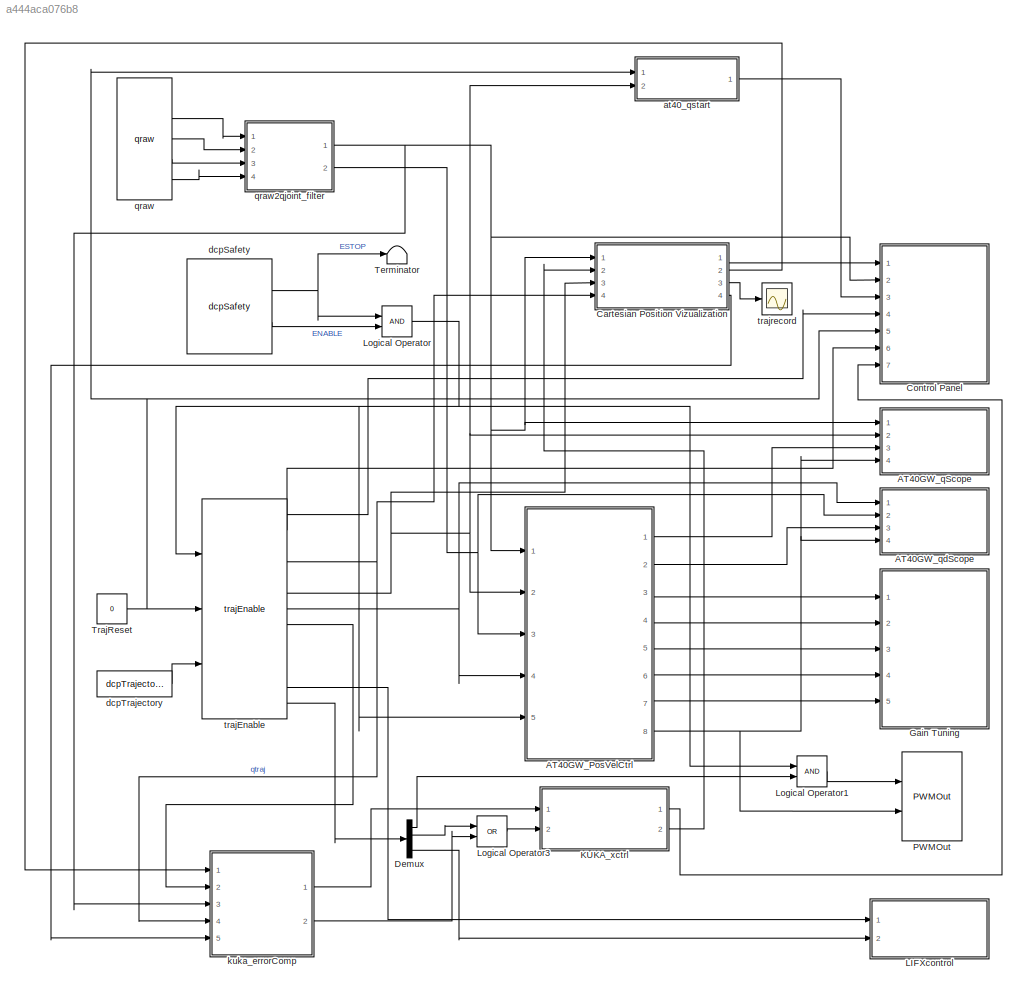
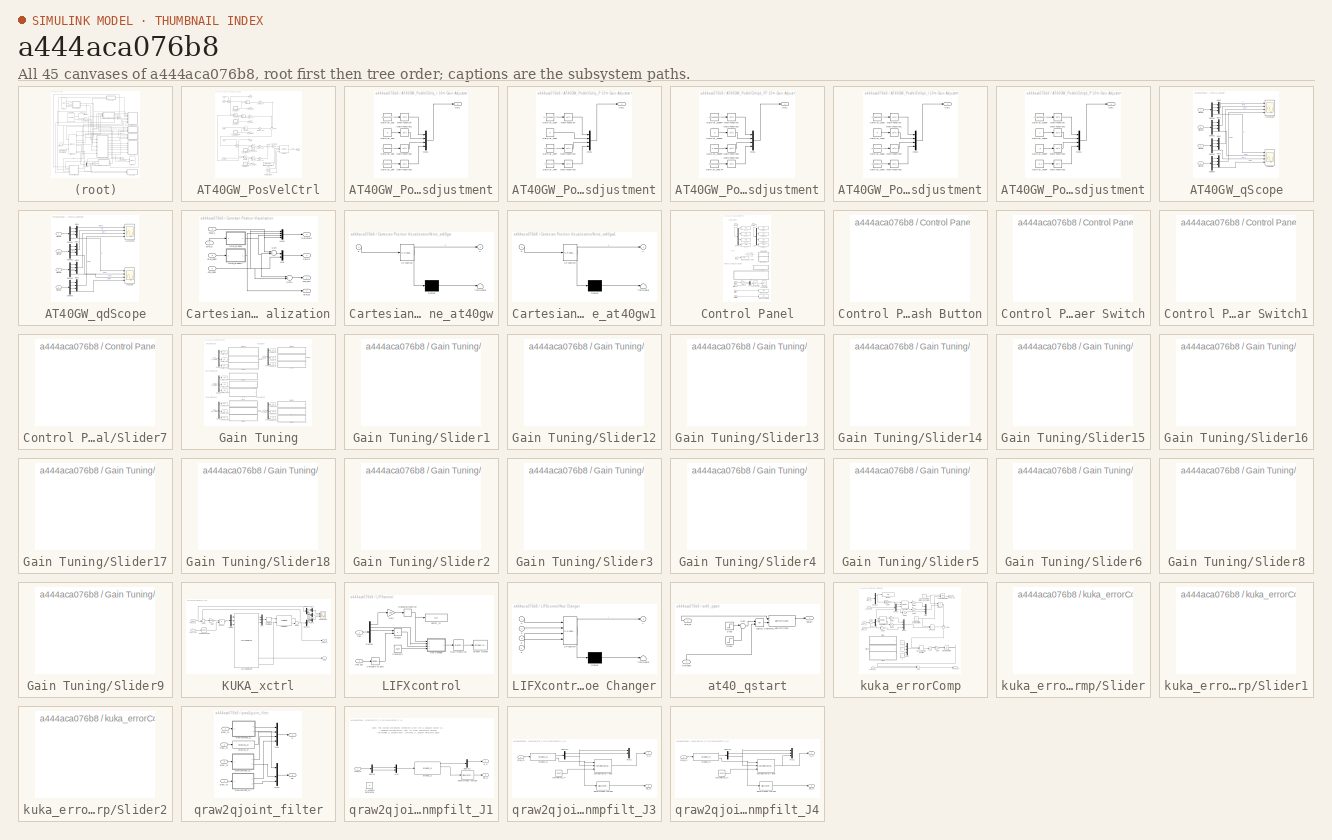
[diagram: thumbnail index - all 45 canvases of the model, root first then tree order]
MODEL slx_a444aca076b8
KIND model
CONFIG AbsTol = auto
CONFIG EnableMultiTasking = on
CONFIG FixedStep = 0.001
CONFIG MaxStep = auto
CONFIG MinStep = auto
CONFIG RelTol = 1e-3
CONFIG SampleTimeConstraint = Unconstrained
CONFIG Solver = ode5
CONFIG SolverName = ode5
CONFIG StartTime = 0.0
CONFIG StopTime = inf
BLOCK [SubSystem] AT40GW_PosVelCtrl
  Ports = [5, 8]
  RequestExecContextInheritance = off
  Variant = off
BLOCK [Inport] AT40GW_PosVelCtrl/ENABLE
  IconDisplay = Port number
  Port = 5
BLOCK [Constant] AT40GW_PosVelCtrl/Error Signal Zero Offset
  Value = [0.01 0 0.001 0.001]
BLOCK [Gain] AT40GW_PosVelCtrl/GainInv_qI
  Gain = [1 1 1 1]
  OutDataTypeStr = Inherit: Inherit via internal rule
  ParamDataTypeStr = Inherit: Inherit via internal rule
  SaturateOnIntegerOverflow = off
BLOCK [Gain] AT40GW_PosVelCtrl/GainInv_qP
  Gain = [1 1 1 1]
  OutDataTypeStr = Inherit: Inherit via internal rule
  ParamDataTypeStr = Inherit: Inherit via internal rule
  SaturateOnIntegerOverflow = off
BLOCK [Gain] AT40GW_PosVelCtrl/GainInv_qdI
  Gain = [1 1 1 -1]
  OutDataTypeStr = Inherit: Inherit via internal rule
  ParamDataTypeStr = Inherit: Inherit via internal rule
  SaturateOnIntegerOverflow = off
BLOCK [Gain] AT40GW_PosVelCtrl/GainInv_qdP
  Gain = [1 1 1 -1]
  OutDataTypeStr = Inherit: Inherit via internal rule
  ParamDataTypeStr = Inherit: Inherit via internal rule
  SaturateOnIntegerOverflow = off
BLOCK [Gain] AT40GW_PosVelCtrl/GainInv_qdff
  Gain = [1 1 1 1]
  OutDataTypeStr = Inherit: Inherit via internal rule
  ParamDataTypeStr = Inherit: Inherit via internal rule
  SaturateOnIntegerOverflow = off
BLOCK [Integrator] AT40GW_PosVelCtrl/Integrator
  ExternalReset = rising
  LimitOutput = on
  LowerSaturationLimit = [-100 -10 -100 -1000]
  Ports = [2, 1]
  UpperSaturationLimit = [100 10 100 1000]
BLOCK [Integrator] AT40GW_PosVelCtrl/Integrator1
  ExternalReset = rising
  LimitOutput = on
  LowerSaturationLimit = [-10 -2 -10 -20]
  Ports = [2, 1]
  UpperSaturationLimit = [10 2 10 20]
BLOCK [Gain] AT40GW_PosVelCtrl/JointActivate
  Gain = [1 0 1 1]
  OutDataTypeStr = Inherit: Inherit via internal rule
  ParamDataTypeStr = Inherit: Inherit via internal rule
  SaturateOnIntegerOverflow = off
BLOCK [Constant] AT40GW_PosVelCtrl/PWM Gain
BLOCK [Constant] AT40GW_PosVelCtrl/PWM Zero Offset
  Value = 0
BLOCK [Reference] AT40GW_PosVelCtrl/PWMmap  REF=dcpctrl/PWMmap
  Ports = [4, 1]
  SourceBlock = dcpctrl/PWMmap
  SourceType = PWMmap
BLOCK [Product] AT40GW_PosVelCtrl/Product
  InputSameDT = off
  OutDataTypeStr = Inherit: Inherit via internal rule
  Ports = [2, 1]
  RndMeth = Floor
  SaturateOnIntegerOverflow = off
BLOCK [Product] AT40GW_PosVelCtrl/Product1
  InputSameDT = off
  OutDataTypeStr = Inherit: Inherit via internal rule
  Ports = [2, 1]
  RndMeth = Floor
  SaturateOnIntegerOverflow = off
BLOCK [Product] AT40GW_PosVelCtrl/Product2
  InputSameDT = off
  OutDataTypeStr = Inherit: Inherit via internal rule
  Ports = [2, 1]
  RndMeth = Floor
  SaturateOnIntegerOverflow = off
BLOCK [Product] AT40GW_PosVelCtrl/Product3
  InputSameDT = off
  OutDataTypeStr = Inherit: Inherit via internal rule
  Ports = [2, 1]
  RndMeth = Floor
  SaturateOnIntegerOverflow = off
BLOCK [Product] AT40GW_PosVelCtrl/Product4
  InputSameDT = off
  OutDataTypeStr = Inherit: Inherit via internal rule
  Ports = [2, 1]
  RndMeth = Floor
  SaturateOnIntegerOverflow = off
BLOCK [Sum] AT40GW_PosVelCtrl/Sum
  IconShape = round
  InputSameDT = off
  Inputs = -+|
  OutDataTypeStr = Inherit: Inherit via internal rule
  Ports = [2, 1]
  SaturateOnIntegerOverflow = off
BLOCK [Sum] AT40GW_PosVelCtrl/Sum1
  IconShape = round
  InputSameDT = off
  Inputs = -+|
  OutDataTypeStr = Inherit: Inherit via internal rule
  Ports = [2, 1]
  SaturateOnIntegerOverflow = off
BLOCK [Sum] AT40GW_PosVelCtrl/Sum2
  IconShape = round
  InputSameDT = off
  Inputs = |++
  OutDataTypeStr = Inherit: Inherit via internal rule
  Ports = [2, 1]
  SaturateOnIntegerOverflow = off
BLOCK [Sum] AT40GW_PosVelCtrl/Sum3
  IconShape = round
  InputSameDT = off
  Inputs = +++
  OutDataTypeStr = Inherit: Inherit via internal rule
  Ports = [3, 1]
  SaturateOnIntegerOverflow = off
BLOCK [Outport] AT40GW_PosVelCtrl/pwm
  IconDisplay = Port number
  Port = 8
BLOCK [Inport] AT40GW_PosVelCtrl/q
  IconDisplay = Port number
BLOCK [SubSystem] AT40GW_PosVelCtrl/q_I 10^n Gain Adjustment
  Ports = [0, 1]
  RequestExecContextInheritance = off
  Variant = off
BLOCK [Constant] AT40GW_PosVelCtrl/q_I 10^n Gain Adjustment/GainAdj_J1qI
  Value = -1.941176470588
BLOCK [Constant] AT40GW_PosVelCtrl/q_I 10^n Gain Adjustment/GainAdj_J2qI
  Value = 0
BLOCK [Constant] AT40GW_PosVelCtrl/q_I 10^n Gain Adjustment/GainAdj_J3qI
  Value = -1.788235294118
BLOCK [Constant] AT40GW_PosVelCtrl/q_I 10^n Gain Adjustment/GainAdj_J4qI
  Value = -1.623529411765
BLOCK [Math] AT40GW_PosVelCtrl/q_I 10^n Gain Adjustment/Math Function
  Operator = 10^u
  Ports = [1, 1]
BLOCK [Math] AT40GW_PosVelCtrl/q_I 10^n Gain Adjustment/Math Function1
  Operator = 10^u
  Ports = [1, 1]
BLOCK [Math] AT40GW_PosVelCtrl/q_I 10^n Gain Adjustment/Math Function2
  Operator = 10^u
  Ports = [1, 1]
BLOCK [Math] AT40GW_PosVelCtrl/q_I 10^n Gain Adjustment/Math Function3
  Operator = 10^u
  Ports = [1, 1]
BLOCK [Mux] AT40GW_PosVelCtrl/q_I 10^n Gain Adjustment/Mux1
  DisplayOption = bar
  Ports = [4, 1]
BLOCK [Outport] AT40GW_PosVelCtrl/q_I 10^n Gain Adjustment/Out1
  IconDisplay = Port number
BLOCK [Outport] AT40GW_PosVelCtrl/q_Igainadj
  IconDisplay = Port number
  Port = 4
BLOCK [SubSystem] AT40GW_PosVelCtrl/q_P 10^n Gain Adjustment
  Ports = [0, 1]
  RequestExecContextInheritance = off
  Variant = off
BLOCK [Constant] AT40GW_PosVelCtrl/q_P 10^n Gain Adjustment/GainAdj_J1qP
  Value = 0.2154696132597
BLOCK [Constant] AT40GW_PosVelCtrl/q_P 10^n Gain Adjustment/GainAdj_J2qP
  Value = 0
BLOCK [Constant] AT40GW_PosVelCtrl/q_P 10^n Gain Adjustment/GainAdj_J3qP
  Value = -0.187845303867
BLOCK [Constant] AT40GW_PosVelCtrl/q_P 10^n Gain Adjustment/GainAdj_J4qP
  Value = -0.491712707182
BLOCK [Math] AT40GW_PosVelCtrl/q_P 10^n Gain Adjustment/Math Function
  Operator = 10^u
  Ports = [1, 1]
BLOCK [Math] AT40GW_PosVelCtrl/q_P 10^n Gain Adjustment/Math Function2
  Operator = 10^u
  Ports = [1, 1]
BLOCK [Math] AT40GW_PosVelCtrl/q_P 10^n Gain Adjustment/Math Function3
  Operator = 10^u
  Ports = [1, 1]
BLOCK [Mux] AT40GW_PosVelCtrl/q_P 10^n Gain Adjustment/Mux1
  DisplayOption = bar
  Ports = [4, 1]
BLOCK [Outport] AT40GW_PosVelCtrl/q_P 10^n Gain Adjustment/Out1
  IconDisplay = Port number
BLOCK [Outport] AT40GW_PosVelCtrl/q_pgainadj
  IconDisplay = Port number
  Port = 3
BLOCK [Inport] AT40GW_PosVelCtrl/qd
  IconDisplay = Port number
  Port = 3
BLOCK [SubSystem] AT40GW_PosVelCtrl/qd_FF 10^n Gain Adjustment
  Ports = [0, 1]
  RequestExecContextInheritance = off
  Variant = off
BLOCK [Constant] AT40GW_PosVelCtrl/qd_FF 10^n Gain Adjustment/GainAdj_J1qdFF
  Value = -0.018382352941
BLOCK [Constant] AT40GW_PosVelCtrl/qd_FF 10^n Gain Adjustment/GainAdj_J2qdFF
  Value = 0
BLOCK [Constant] AT40GW_PosVelCtrl/qd_FF 10^n Gain Adjustment/GainAdj_J3qdFF
  Value = -0.0625
BLOCK [Constant] AT40GW_PosVelCtrl/qd_FF 10^n Gain Adjustment/GainAdj_J4qd FF
  Value = -0.002259036145
BLOCK [Math] AT40GW_PosVelCtrl/qd_FF 10^n Gain Adjustment/Math Function
  Operator = 10^u
  Ports = [1, 1]
BLOCK [Math] AT40GW_PosVelCtrl/qd_FF 10^n Gain Adjustment/Math Function1
  Operator = 10^u
  Ports = [1, 1]
BLOCK [Math] AT40GW_PosVelCtrl/qd_FF 10^n Gain Adjustment/Math Function2
  Operator = 10^u
  Ports = [1, 1]
BLOCK [Math] AT40GW_PosVelCtrl/qd_FF 10^n Gain Adjustment/Math Function3
  Operator = 10^u
  Ports = [1, 1]
BLOCK [Mux] AT40GW_PosVelCtrl/qd_FF 10^n Gain Adjustment/Mux1
  DisplayOption = bar
  Ports = [4, 1]
BLOCK [Outport] AT40GW_PosVelCtrl/qd_FF 10^n Gain Adjustment/Out1
  IconDisplay = Port number
BLOCK [SubSystem] AT40GW_PosVelCtrl/qd_I 10^n Gain Adjustment
  Ports = [0, 1]
  RequestExecContextInheritance = off
  Variant = off
BLOCK [Constant] AT40GW_PosVelCtrl/qd_I 10^n Gain Adjustment/GainAdj_J1qdI
  Value = -1.188235294118
BLOCK [Constant] AT40GW_PosVelCtrl/qd_I 10^n Gain Adjustment/GainAdj_J2qdI
  Value = 0
BLOCK [Constant] AT40GW_PosVelCtrl/qd_I 10^n Gain Adjustment/GainAdj_J3qdI
  Value = -0.941176470588
BLOCK [Constant] AT40GW_PosVelCtrl/qd_I 10^n Gain Adjustment/GainAdj_J4qdI
  Value = -2.552941176471
BLOCK [Math] AT40GW_PosVelCtrl/qd_I 10^n Gain Adjustment/Math Function
  Operator = 10^u
  Ports = [1, 1]
BLOCK [Math] AT40GW_PosVelCtrl/qd_I 10^n Gain Adjustment/Math Function1
  Operator = 10^u
  Ports = [1, 1]
BLOCK [Math] AT40GW_PosVelCtrl/qd_I 10^n Gain Adjustment/Math Function2
  Operator = 10^u
  Ports = [1, 1]
BLOCK [Math] AT40GW_PosVelCtrl/qd_I 10^n Gain Adjustment/Math Function3
  Operator = 10^u
  Ports = [1, 1]
BLOCK [Mux] AT40GW_PosVelCtrl/qd_I 10^n Gain Adjustment/Mux1
  DisplayOption = bar
  Ports = [4, 1]
BLOCK [Outport] AT40GW_PosVelCtrl/qd_I 10^n Gain Adjustment/Out1
  IconDisplay = Port number
BLOCK [Outport] AT40GW_PosVelCtrl/qd_Igainadj
  IconDisplay = Port number
  Port = 7
BLOCK [SubSystem] AT40GW_PosVelCtrl/qd_P 10^n Gain Adjustment
  Ports = [0, 1]
  RequestExecContextInheritance = off
  Variant = off
BLOCK [Constant] AT40GW_PosVelCtrl/qd_P 10^n Gain Adjustment/GainAdj_J1qdP
  Value = -2.082352941176
BLOCK [Constant] AT40GW_PosVelCtrl/qd_P 10^n Gain Adjustment/GainAdj_J2qdP
BLOCK [Constant] AT40GW_PosVelCtrl/qd_P 10^n Gain Adjustment/GainAdj_J3qdP
  Value = -2
BLOCK [Constant] AT40GW_PosVelCtrl/qd_P 10^n Gain Adjustment/GainAdj_J4qdP
  Value = -3.4
BLOCK [Math] AT40GW_PosVelCtrl/qd_P 10^n Gain Adjustment/Math Function
  Operator = 10^u
  Ports = [1, 1]
BLOCK [Math] AT40GW_PosVelCtrl/qd_P 10^n Gain Adjustment/Math Function1
  Operator = 10^u
  Ports = [1, 1]
BLOCK [Math] AT40GW_PosVelCtrl/qd_P 10^n Gain Adjustment/Math Function2
  Operator = 10^u
  Ports = [1, 1]
BLOCK [Math] AT40GW_PosVelCtrl/qd_P 10^n Gain Adjustment/Math Function3
  Operator = 10^u
  Ports = [1, 1]
BLOCK [Mux] AT40GW_PosVelCtrl/qd_P 10^n Gain Adjustment/Mux1
  DisplayOption = bar
  Ports = [4, 1]
BLOCK [Outport] AT40GW_PosVelCtrl/qd_P 10^n Gain Adjustment/Out1
  IconDisplay = Port number
BLOCK [Outport] AT40GW_PosVelCtrl/qd_ffgainadj
  IconDisplay = Port number
  Port = 5
BLOCK [Outport] AT40GW_PosVelCtrl/qd_pgainadj
  IconDisplay = Port number
  Port = 6
BLOCK [Outport] AT40GW_PosVelCtrl/qderr
  IconDisplay = Port number
  Port = 2
BLOCK [Inport] AT40GW_PosVelCtrl/qdtraj
  IconDisplay = Port number
  Port = 4
BLOCK [Outport] AT40GW_PosVelCtrl/qerr
  IconDisplay = Port number
BLOCK [Inport] AT40GW_PosVelCtrl/qtraj
  IconDisplay = Port number
  Port = 2
BLOCK [SubSystem] AT40GW_qScope
  AncestorBlock = dcpctrl/AT40GW_qScope
  Ports = [4]
  RequestExecContextInheritance = off
  Variant = off
BLOCK [Demux] AT40GW_qScope/Demux1
  DisplayOption = bar
  Ports = [1, 4]
BLOCK [Demux] AT40GW_qScope/Demux2
  DisplayOption = bar
  Ports = [1, 4]
BLOCK [Demux] AT40GW_qScope/Demux3
  DisplayOption = bar
  Ports = [1, 4]
BLOCK [Demux] AT40GW_qScope/Demux4
  DisplayOption = bar
  Ports = [1, 4]
BLOCK [Scope] AT40GW_qScope/J123 Scope
  NumInputPorts = 4
  Ports = [4]
  ScopeSpecificationString = Simulink.scopes.TimeScopeBlockCfg('CurrentConfiguration', extmgr.ConfigurationSet(extmgr.Configuration('Core','General UI',true,'FigureColor',[1 1 1]),extmgr.Configuration('Core','Source UI',true),extmgr.Configuration('Sources','WiredSimulink',true,'DataLoggingVariableName','ScopeData1'),extmgr.Configuration('Visuals','Time Domain',true,'SerializedDisplays',{struct('MinYLimReal','-0.46724','MaxYLi...<+5230ch>
BLOCK [Scope] AT40GW_qScope/J4 Scope
  NumInputPorts = 4
  Ports = [4]
  ScopeSpecificationString = Simulink.scopes.TimeScopeBlockCfg('CurrentConfiguration', extmgr.ConfigurationSet(extmgr.Configuration('Core','General UI',true,'FigureColor',[1 1 1]),extmgr.Configuration('Core','Source UI',true),extmgr.Configuration('Sources','WiredSimulink',true,'DataLoggingVariableName','ScopeData2'),extmgr.Configuration('Visuals','Time Domain',true,'SerializedDisplays',{struct('MinYLimReal','98.57501','MaxYLi...<+5169ch>
BLOCK [Mux] AT40GW_qScope/Mux1
  DisplayOption = bar
  Inputs = 3
  Ports = [3, 1]
BLOCK [Mux] AT40GW_qScope/Mux2
  DisplayOption = bar
  Inputs = 3
  Ports = [3, 1]
BLOCK [Mux] AT40GW_qScope/Mux3
  DisplayOption = bar
  Inputs = 3
  Ports = [3, 1]
BLOCK [Mux] AT40GW_qScope/Mux6
  DisplayOption = bar
  Inputs = 3
  Ports = [3, 1]
BLOCK [Inport] AT40GW_qScope/Signal1
  IconDisplay = Port number
BLOCK [Inport] AT40GW_qScope/Signal2
  IconDisplay = Port number
  Port = 2
BLOCK [Inport] AT40GW_qScope/Signal3
  IconDisplay = Port number
  Port = 3
BLOCK [Inport] AT40GW_qScope/Signal4
  IconDisplay = Port number
  Port = 4
BLOCK [SubSystem] AT40GW_qdScope
  AncestorBlock = dcpctrl/AT40GW_qScope
  Ports = [4]
  RequestExecContextInheritance = off
  Variant = off
BLOCK [Demux] AT40GW_qdScope/Demux1
  DisplayOption = bar
  Ports = [1, 4]
BLOCK [Demux] AT40GW_qdScope/Demux2
  DisplayOption = bar
  Ports = [1, 4]
BLOCK [Demux] AT40GW_qdScope/Demux3
  DisplayOption = bar
  Ports = [1, 4]
BLOCK [Demux] AT40GW_qdScope/Demux4
  DisplayOption = bar
  Ports = [1, 4]
BLOCK [Scope] AT40GW_qdScope/J123 Scope
  NumInputPorts = 4
  Ports = [4]
  ScopeSpecificationString = Simulink.scopes.TimeScopeBlockCfg('CurrentConfiguration', extmgr.ConfigurationSet(extmgr.Configuration('Core','General UI',true,'FigureColor',[1 1 1]),extmgr.Configuration('Core','Source UI',true),extmgr.Configuration('Sources','WiredSimulink',true,'DataLoggingVariableName','ScopeData1'),extmgr.Configuration('Visuals','Time Domain',true,'SerializedDisplays',{struct('MinYLimReal','-2.62336','MaxYLi...<+5268ch>
BLOCK [Scope] AT40GW_qdScope/J4 Scope
  NumInputPorts = 4
  Ports = [4]
  ScopeSpecificationString = Simulink.scopes.TimeScopeBlockCfg('CurrentConfiguration', extmgr.ConfigurationSet(extmgr.Configuration('Core','General UI',true,'FigureColor',[1 1 1]),extmgr.Configuration('Core','Source UI',true),extmgr.Configuration('Sources','WiredSimulink',true,'DataLoggingVariableName','ScopeData2'),extmgr.Configuration('Visuals','Time Domain',true,'SerializedDisplays',{struct('MinYLimReal','-125.00000','MaxY...<+5182ch>
BLOCK [Mux] AT40GW_qdScope/Mux1
  DisplayOption = bar
  Inputs = 3
  Ports = [3, 1]
BLOCK [Mux] AT40GW_qdScope/Mux2
  DisplayOption = bar
  Inputs = 3
  Ports = [3, 1]
BLOCK [Mux] AT40GW_qdScope/Mux3
  DisplayOption = bar
  Inputs = 3
  Ports = [3, 1]
BLOCK [Mux] AT40GW_qdScope/Mux6
  DisplayOption = bar
  Inputs = 3
  Ports = [3, 1]
BLOCK [Inport] AT40GW_qdScope/Signal1
  IconDisplay = Port number
BLOCK [Inport] AT40GW_qdScope/Signal2
  IconDisplay = Port number
  Port = 2
BLOCK [Inport] AT40GW_qdScope/Signal3
  IconDisplay = Port number
  Port = 3
BLOCK [Inport] AT40GW_qdScope/Signal4
  IconDisplay = Port number
  Port = 4
BLOCK [SubSystem] Cartesian Position Vizualization
  Ports = [4, 4]
  RequestExecContextInheritance = off
  Variant = off
BLOCK [Mux] Cartesian Position Vizualization/Mux
  DisplayOption = bar
  Inputs = 2
  Ports = [2, 1]
BLOCK [Mux] Cartesian Position Vizualization/Mux1
  DisplayOption = bar
  Ports = [4, 1]
BLOCK [Sum] Cartesian Position Vizualization/Sum
  InputSameDT = off
  OutDataTypeStr = Inherit: Inherit via internal rule
  Ports = [2, 1]
  SaturateOnIntegerOverflow = off
BLOCK [Sum] Cartesian Position Vizualization/Sum1
  InputSameDT = off
  Inputs = +-
  OutDataTypeStr = Inherit: Inherit via internal rule
  Ports = [2, 1]
  SaturateOnIntegerOverflow = off
BLOCK [Inport] Cartesian Position Vizualization/at40_q
  IconDisplay = Port number
BLOCK [Inport] Cartesian Position Vizualization/at40_qdes
  IconDisplay = Port number
  Port = 3
BLOCK [Outport] Cartesian Position Vizualization/at40_xt
  IconDisplay = Port number
  Port = 4
BLOCK [Inport] Cartesian Position Vizualization/dcp_xdes
  IconDisplay = Port number
  Port = 4
BLOCK [Outport] Cartesian Position Vizualization/dcp_xerr
  IconDisplay = Port number
  Port = 2
BLOCK [SubSystem] Cartesian Position Vizualization/fkine_at40gw
  ErrorFcn = Stateflow.Translate.translate
  PermitHierarchicalResolution = ExplicitOnly
  Ports = [1, 1]
  RequestExecContextInheritance = off
  SFBlockType = MATLAB Function
  TreatAsAtomicUnit = on
  Variant = off
BLOCK [Demux] Cartesian Position Vizualization/fkine_at40gw/ Demux 
  Outputs = 1
  Ports = [1, 1]
BLOCK [S-Function] Cartesian Position Vizualization/fkine_at40gw/ SFunction 
  EnableBusSupport = off
  FunctionName = sf_sfun
  PortCounts = [1 2]
  Ports = [1, 2]
  SFcnIsStateOwnerBlock = off
  SFunctionDeploymentMode = off
  Tag = Stateflow S-Function dcpController 2
BLOCK [Terminator] Cartesian Position Vizualization/fkine_at40gw/ Terminator 
BLOCK [Inport] Cartesian Position Vizualization/fkine_at40gw/q
  IconDisplay = Port number
BLOCK [Outport] Cartesian Position Vizualization/fkine_at40gw/x
  IconDisplay = Port number
BLOCK [SubSystem] Cartesian Position Vizualization/fkine_at40gw1
  ErrorFcn = Stateflow.Translate.translate
  PermitHierarchicalResolution = ExplicitOnly
  Ports = [1, 1]
  RequestExecContextInheritance = off
  SFBlockType = MATLAB Function
  TreatAsAtomicUnit = on
  Variant = off
BLOCK [Demux] Cartesian Position Vizualization/fkine_at40gw1/ Demux 
  Outputs = 1
  Ports = [1, 1]
BLOCK [S-Function] Cartesian Position Vizualization/fkine_at40gw1/ SFunction 
  EnableBusSupport = off
  FunctionName = sf_sfun
  PortCounts = [1 2]
  Ports = [1, 2]
  SFcnIsStateOwnerBlock = off
  SFunctionDeploymentMode = off
  Tag = Stateflow S-Function dcpController 3
BLOCK [Terminator] Cartesian Position Vizualization/fkine_at40gw1/ Terminator 
BLOCK [Inport] Cartesian Position Vizualization/fkine_at40gw1/q
  IconDisplay = Port number
BLOCK [Outport] Cartesian Position Vizualization/fkine_at40gw1/x
  IconDisplay = Port number
BLOCK [Inport] Cartesian Position Vizualization/kuka_x
  IconDisplay = Port number
  Port = 2
BLOCK [Outport] Cartesian Position Vizualization/trajrecord
  IconDisplay = Port number
  Port = 3
BLOCK [Outport] Cartesian Position Vizualization/trajviz
  IconDisplay = Port number
BLOCK [SubSystem] Control Panel
  Ports = [7]
  RequestExecContextInheritance = off
  Variant = off
BLOCK [Demux] Control Panel/Demux1
  DisplayOption = bar
  Ports = [1, 4]
BLOCK [Demux] Control Panel/Demux2
  DisplayOption = bar
  Ports = [1, 4]
BLOCK [Gain] Control Panel/Gain
  Gain = 0.01
  OutDataTypeStr = Inherit: Inherit via internal rule
  ParamDataTypeStr = Inherit: Inherit via internal rule
  SaturateOnIntegerOverflow = off
BLOCK [Inport] Control Panel/IPOC
  IconDisplay = Port number
  Port = 7
BLOCK [Display] Control Panel/KUKA IPOC
  Decimation = 1
  Ports = [1]
BLOCK [Mux] Control Panel/Mux
  DisplayOption = bar
  Inputs = 2
  Ports = [2, 1]
BLOCK [SubSystem] Control Panel/Push Button
  DialogController = hmiCreateDDGDialog
  IsWebBlock = on
  Ports = []
  RequestExecContextInheritance = off
  Variant = off
BLOCK [RateTransition] Control Panel/Rate Transition
BLOCK [SubSystem] Control Panel/Slider Switch
  DialogController = hmiCreateDDGDialog
  IsWebBlock = on
  MaskHideContents = on
  Ports = []
  RequestExecContextInheritance = off
  Variant = off
BLOCK [SubSystem] Control Panel/Slider Switch1
  DialogController = hmiCreateDDGDialog
  IsWebBlock = on
  MaskHideContents = on
  Ports = []
  RequestExecContextInheritance = off
  Variant = off
BLOCK [SubSystem] Control Panel/Slider7
  DialogController = hmiCreateDDGDialog
  IsWebBlock = on
  MaskHideContents = on
  Ports = []
  RequestExecContextInheritance = off
  Variant = off
BLOCK [Display] Control Panel/Trajectory Start TIME
  Decimation = 1
  Ports = [1]
BLOCK [Display] Control Panel/Trajectory Time
  Decimation = 1
  Ports = [1]
BLOCK [S-Function] Control Panel/Trajectory Visualization
  CopyFcn = if exist('sfun3d','file'), sfun3d([],[],[],'CopyBlock'); end
  DeleteFcn = if exist('sfun3d','file'), sfun3d([],[],[],'DeleteBlock'); end
  EnableBusSupport = off
  FunctionName = sfun3d
  LoadFcn = if exist('sfun3d','file'), sfun3d([],[],[],'LoadBlock'); end
  NameChangeFcn = if exist('sfun3d','file'), sfun3d([],[],[],'NameChange'); end
  Parameters = ax,T,np,cp,gd,ls,mk
  Ports = [1]
  SFcnIsStateOwnerBlock = off
  SFunctionDeploymentMode = off
BLOCK [Display] Control Panel/q_J1
  Decimation = 1
  Ports = [1]
BLOCK [Display] Control Panel/q_J2
  Decimation = 1
  Ports = [1]
BLOCK [Display] Control Panel/q_J3
  Decimation = 1
  Ports = [1]
BLOCK [Display] Control Panel/q_J4
  Decimation = 1
  Ports = [1]
BLOCK [Inport] Control Panel/qcur
  IconDisplay = Port number
  Port = 2
BLOCK [Inport] Control Panel/qstart
  IconDisplay = Port number
  Port = 3
BLOCK [Display] Control Panel/qstart_J1
  Decimation = 1
  Ports = [1]
BLOCK [Display] Control Panel/qstart_J2
  Decimation = 1
  Ports = [1]
BLOCK [Display] Control Panel/qstart_J3
  Decimation = 1
  Ports = [1]
BLOCK [Display] Control Panel/qstart_J4
  Decimation = 1
  Ports = [1]
BLOCK [Inport] Control Panel/starttime
  IconDisplay = Port number
  Port = 6
BLOCK [Inport] Control Panel/trajreset
  IconDisplay = Port number
  Port = 5
BLOCK [Inport] Control Panel/trajtime
  IconDisplay = Port number
  Port = 4
BLOCK [Inport] Control Panel/trajviz
  IconDisplay = Port number
BLOCK [Demux] Demux
  DisplayOption = bar
  Ports = [1, 4]
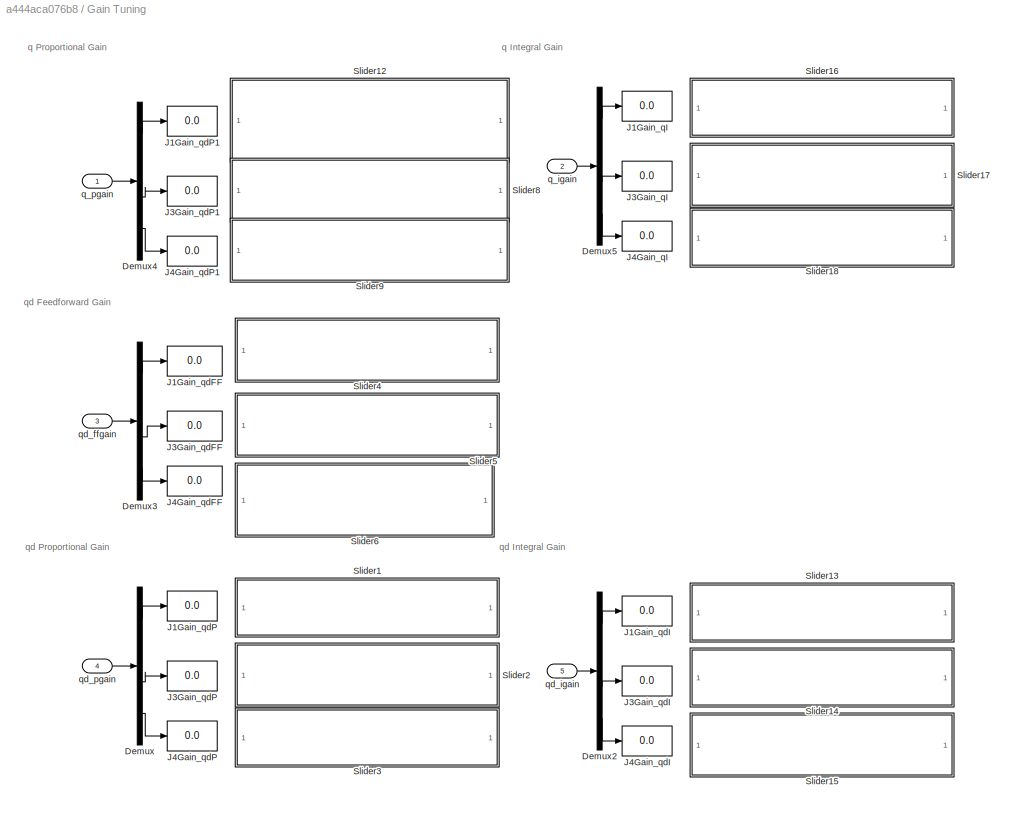
BLOCK [SubSystem] Gain Tuning
  Ports = [5]
  RequestExecContextInheritance = off
  Variant = off
BLOCK [Demux] Gain Tuning/Demux
  DisplayOption = bar
  Ports = [1, 4]
BLOCK [Demux] Gain Tuning/Demux2
  DisplayOption = bar
  Ports = [1, 4]
BLOCK [Demux] Gain Tuning/Demux3
  DisplayOption = bar
  Ports = [1, 4]
BLOCK [Demux] Gain Tuning/Demux4
  DisplayOption = bar
  Ports = [1, 4]
BLOCK [Demux] Gain Tuning/Demux5
  DisplayOption = bar
  Ports = [1, 4]
BLOCK [Display] Gain Tuning/J1Gain_qI
  Decimation = 1
  Ports = [1]
BLOCK [Display] Gain Tuning/J1Gain_qdFF
  Decimation = 1
  Ports = [1]
BLOCK [Display] Gain Tuning/J1Gain_qdI
  Decimation = 1
  Ports = [1]
BLOCK [Display] Gain Tuning/J1Gain_qdP
  Decimation = 1
  Ports = [1]
BLOCK [Display] Gain Tuning/J1Gain_qdP1
  Decimation = 1
  Ports = [1]
BLOCK [Display] Gain Tuning/J3Gain_qI
  Decimation = 1
  Ports = [1]
BLOCK [Display] Gain Tuning/J3Gain_qdFF
  Decimation = 1
  Ports = [1]
BLOCK [Display] Gain Tuning/J3Gain_qdI
  Decimation = 1
  Ports = [1]
BLOCK [Display] Gain Tuning/J3Gain_qdP
  Decimation = 1
  Ports = [1]
BLOCK [Display] Gain Tuning/J3Gain_qdP1
  Decimation = 1
  Ports = [1]
BLOCK [Display] Gain Tuning/J4Gain_qI
  Decimation = 1
  Ports = [1]
BLOCK [Display] Gain Tuning/J4Gain_qdFF
  Decimation = 1
  Ports = [1]
BLOCK [Display] Gain Tuning/J4Gain_qdI
  Decimation = 1
  Ports = [1]
BLOCK [Display] Gain Tuning/J4Gain_qdP
  Decimation = 1
  Ports = [1]
BLOCK [Display] Gain Tuning/J4Gain_qdP1
  Decimation = 1
  Ports = [1]
BLOCK [SubSystem] Gain Tuning/Slider1
  DialogController = hmiCreateDDGDialog
  IsWebBlock = on
  MaskHideContents = on
  Ports = []
  RequestExecContextInheritance = off
  Variant = off
BLOCK [SubSystem] Gain Tuning/Slider12
  DialogController = hmiCreateDDGDialog
  IsWebBlock = on
  MaskHideContents = on
  Ports = []
  RequestExecContextInheritance = off
  Variant = off
BLOCK [SubSystem] Gain Tuning/Slider13
  DialogController = hmiCreateDDGDialog
  IsWebBlock = on
  MaskHideContents = on
  Ports = []
  RequestExecContextInheritance = off
  Variant = off
BLOCK [SubSystem] Gain Tuning/Slider14
  DialogController = hmiCreateDDGDialog
  IsWebBlock = on
  MaskHideContents = on
  Ports = []
  RequestExecContextInheritance = off
  Variant = off
BLOCK [SubSystem] Gain Tuning/Slider15
  DialogController = hmiCreateDDGDialog
  IsWebBlock = on
  MaskHideContents = on
  Ports = []
  RequestExecContextInheritance = off
  Variant = off
BLOCK [SubSystem] Gain Tuning/Slider16
  DialogController = hmiCreateDDGDialog
  IsWebBlock = on
  MaskHideContents = on
  Ports = []
  RequestExecContextInheritance = off
  Variant = off
BLOCK [SubSystem] Gain Tuning/Slider17
  DialogController = hmiCreateDDGDialog
  IsWebBlock = on
  MaskHideContents = on
  Ports = []
  RequestExecContextInheritance = off
  Variant = off
BLOCK [SubSystem] Gain Tuning/Slider18
  DialogController = hmiCreateDDGDialog
  IsWebBlock = on
  MaskHideContents = on
  Ports = []
  RequestExecContextInheritance = off
  Variant = off
BLOCK [SubSystem] Gain Tuning/Slider2
  DialogController = hmiCreateDDGDialog
  IsWebBlock = on
  MaskHideContents = on
  Ports = []
  RequestExecContextInheritance = off
  Variant = off
BLOCK [SubSystem] Gain Tuning/Slider3
  DialogController = hmiCreateDDGDialog
  IsWebBlock = on
  MaskHideContents = on
  Ports = []
  RequestExecContextInheritance = off
  Variant = off
BLOCK [SubSystem] Gain Tuning/Slider4
  DialogController = hmiCreateDDGDialog
  IsWebBlock = on
  MaskHideContents = on
  Ports = []
  RequestExecContextInheritance = off
  Variant = off
BLOCK [SubSystem] Gain Tuning/Slider5
  DialogController = hmiCreateDDGDialog
  IsWebBlock = on
  MaskHideContents = on
  Ports = []
  RequestExecContextInheritance = off
  Variant = off
BLOCK [SubSystem] Gain Tuning/Slider6
  DialogController = hmiCreateDDGDialog
  IsWebBlock = on
  MaskHideContents = on
  Ports = []
  RequestExecContextInheritance = off
  Variant = off
BLOCK [SubSystem] Gain Tuning/Slider8
  DialogController = hmiCreateDDGDialog
  IsWebBlock = on
  MaskHideContents = on
  Ports = []
  RequestExecContextInheritance = off
  Variant = off
BLOCK [SubSystem] Gain Tuning/Slider9
  DialogController = hmiCreateDDGDialog
  IsWebBlock = on
  MaskHideContents = on
  Ports = []
  RequestExecContextInheritance = off
  Variant = off
BLOCK [Inport] Gain Tuning/q_igain
  IconDisplay = Port number
  Port = 2
BLOCK [Inport] Gain Tuning/q_pgain
  IconDisplay = Port number
BLOCK [Inport] Gain Tuning/qd_ffgain
  IconDisplay = Port number
  Port = 3
BLOCK [Inport] Gain Tuning/qd_igain
  IconDisplay = Port number
  Port = 5
BLOCK [Inport] Gain Tuning/qd_pgain
  IconDisplay = Port number
  Port = 4
BLOCK [SubSystem] KUKA_xctrl
  Ports = [2, 2]
  RequestExecContextInheritance = off
  Variant = off
BLOCK [Reference] KUKA_xctrl/Compare To Zero  REF=simulink/Logic and Bit
Operations/Compare
To Zero
  Ports = [1, 1]
  SourceBlock = simulink/Logic and Bit\nOperations/Compare\nTo Zero
  SourceProductBaseCode = SL
  SourceProductName = Simulink
  SourceType = Compare To Zero
BLOCK [ComplexToRealImag] KUKA_xctrl/Complex to Real-Imag
  Ports = [1, 2]
BLOCK [Scope] KUKA_xctrl/DCP Scope
  NumInputPorts = 3
  Ports = [3]
  ScopeSpecificationString = Simulink.scopes.TimeScopeBlockCfg('CurrentConfiguration', extmgr.ConfigurationSet(extmgr.Configuration('Core','General UI',true,'FigureColor',[1 1 1]),extmgr.Configuration('Core','Source UI',true),extmgr.Configuration('Sources','WiredSimulink',true,'DataLoggingVariableName','ScopeData1'),extmgr.Configuration('Visuals','Time Domain',true,'SerializedDisplays',{struct('MinYLimReal','-146.35','MaxYLim...<+3216ch>
BLOCK [Demux] KUKA_xctrl/Demux
  DisplayOption = bar
  Outputs = 3
  Ports = [1, 3]
BLOCK [Demux] KUKA_xctrl/Demux1
  DisplayOption = bar
  Outputs = 3
  Ports = [1, 3]
BLOCK [Demux] KUKA_xctrl/Demux2
  DisplayOption = bar
  Outputs = 3
  Ports = [1, 3]
BLOCK [Gain] KUKA_xctrl/Gain
  Gain = 0.05
  OutDataTypeStr = Inherit: Inherit via internal rule
  ParamDataTypeStr = Inherit: Inherit via internal rule
  SaturateOnIntegerOverflow = off
BLOCK [Outport] KUKA_xctrl/IPOC
  IconDisplay = Port number
BLOCK [Reference] KUKA_xctrl/KUKASimulinkCtrl  REF=kukaslxctrl/KUKASimulinkCtrl  (lib defined in slx_03d93a5889d5, slx_da8e6fcdb2ed)
  Ports = [13, 16]
  SourceBlock = kukaslxctrl/KUKASimulinkCtrl
  SourceType = KUKASimulinkCtrl
BLOCK [Mux] KUKA_xctrl/Mux
  DisplayOption = bar
  Inputs = 3
  Ports = [3, 1]
BLOCK [Mux] KUKA_xctrl/Mux1
  DisplayOption = bar
  Inputs = 2
  Ports = [2, 1]
BLOCK [Mux] KUKA_xctrl/Mux2
  DisplayOption = bar
  Inputs = 2
  Ports = [2, 1]
BLOCK [Mux] KUKA_xctrl/Mux3
  DisplayOption = bar
  Inputs = 2
  Ports = [2, 1]
BLOCK [Product] KUKA_xctrl/Product
  InputSameDT = off
  OutDataTypeStr = Inherit: Inherit via internal rule
  Ports = [2, 1]
  RndMeth = Floor
  SaturateOnIntegerOverflow = off
BLOCK [Sum] KUKA_xctrl/Sum3
  IconShape = round
  InputSameDT = off
  Inputs = -+|
  OutDataTypeStr = Inherit: Inherit via internal rule
  Ports = [2, 1]
  SaturateOnIntegerOverflow = off
BLOCK [Sum] KUKA_xctrl/Sum4
  IconShape = round
  InputSameDT = off
  Inputs = -+|
  OutDataTypeStr = Inherit: Inherit via internal rule
  Ports = [2, 1]
  SaturateOnIntegerOverflow = off
BLOCK [Reference] KUKA_xctrl/getInitState1  REF=dcpctrl/getInitState
  Ports = [2, 2]
  SourceBlock = dcpctrl/getInitState
  SourceType = SubSystem
BLOCK [Inport] KUKA_xctrl/kuka_EN
  IconDisplay = Port number
  Port = 2
BLOCK [Outport] KUKA_xctrl/kuka_x
  IconDisplay = Port number
  Port = 2
BLOCK [Inport] KUKA_xctrl/kuka_xt   
  IconDisplay = Port number
BLOCK [SubSystem] LIFXcontrol
  Ports = [2]
  RequestExecContextInheritance = off
  Variant = off
BLOCK [Reference] LIFXcontrol/Compare To Zero  REF=simulink/Logic and Bit
Operations/Compare
To Zero
  Ports = [1, 1]
  SourceBlock = simulink/Logic and Bit\nOperations/Compare\nTo Zero
  SourceProductBaseCode = SL
  SourceProductName = Simulink
  SourceType = Compare To Zero
BLOCK [Constant] LIFXcontrol/Constant3
  OutDataTypeStr = double
  OutMax = [9000]
  OutMin = [2500]
  Value = 3500
BLOCK [Demux] LIFXcontrol/Demux
  DisplayOption = bar
  Outputs = 6
  Ports = [1, 6]
BLOCK [Gain] LIFXcontrol/Gain
  Gain = 360
  OutDataTypeStr = Inherit: Inherit via internal rule
  ParamDataTypeStr = Inherit: Inherit via internal rule
  SaturateOnIntegerOverflow = off
BLOCK [SubSystem] LIFXcontrol/Hue Changer
  ErrorFcn = Stateflow.Translate.translate
  PermitHierarchicalResolution = ExplicitOnly
  Ports = [4, 1]
  RequestExecContextInheritance = off
  SFBlockType = MATLAB Function
  TreatAsAtomicUnit = on
  Variant = off
BLOCK [Demux] LIFXcontrol/Hue Changer/ Demux 
  Outputs = 1
  Ports = [1, 1]
BLOCK [S-Function] LIFXcontrol/Hue Changer/ SFunction 
  EnableBusSupport = off
  FunctionName = sf_sfun
  PortCounts = [4 2]
  Ports = [4, 2]
  SFcnIsStateOwnerBlock = off
  SFunctionDeploymentMode = off
  Tag = Stateflow S-Function dcpController 4
BLOCK [Terminator] LIFXcontrol/Hue Changer/ Terminator 
BLOCK [Inport] LIFXcontrol/Hue Changer/b
  IconDisplay = Port number
  Port = 3
BLOCK [Inport] LIFXcontrol/Hue Changer/h
  IconDisplay = Port number
BLOCK [Inport] LIFXcontrol/Hue Changer/k
  IconDisplay = Port number
  Port = 4
BLOCK [Inport] LIFXcontrol/Hue Changer/s
  IconDisplay = Port number
  Port = 2
BLOCK [Outport] LIFXcontrol/Hue Changer/y
  IconDisplay = Port number
BLOCK [Product] LIFXcontrol/Product
  InputSameDT = off
  OutDataTypeStr = Inherit: Inherit via internal rule
  Ports = [2, 1]
  RndMeth = Floor
  SaturateOnIntegerOverflow = off
BLOCK [RateTransition] LIFXcontrol/Rate Transition
BLOCK [Rounding] LIFXcontrol/Rounding Function
  Operator = round
BLOCK [Reference] LIFXcontrol/Stream Output  REF=sldrtlib/Stream Output
  AttributesFormatString = Standard Devices\nUDP Protocol [D457h]
  Ports = [1]
  SourceBlock = sldrtlib/Stream Output
  SourceProductBaseCode = WT
  SourceProductName = Simulink Desktop Real-Time
  SourceType = Simulink Desktop Real-Time Stream Output
BLOCK [Display] LIFXcontrol/qstart_J4
  Decimation = 1
  Ports = [1]
BLOCK [Inport] LIFXcontrol/tool
  IconDisplay = Port number
BLOCK [Inport] LIFXcontrol/tool_EN
  IconDisplay = Port number
  Port = 2
BLOCK [Logic] Logical Operator
  AllPortsSameDT = off
  OutDataTypeStr = boolean
  Ports = [2, 1]
BLOCK [Logic] Logical Operator1
  AllPortsSameDT = off
  OutDataTypeStr = boolean
  Ports = [2, 1]
BLOCK [Logic] Logical Operator3
  AllPortsSameDT = off
  Operator = OR
  OutDataTypeStr = boolean
  Ports = [2, 1]
BLOCK [Reference] PWMOut  REF=dcpctrl/PWMOut
  Ports = [2]
  SourceBlock = dcpctrl/PWMOut
  SourceType = SubSystem
BLOCK [Terminator] Terminator
BLOCK [Constant] TrajReset
  Value = 0
BLOCK [SubSystem] at40_qstart
  Ports = [2, 1]
  RequestExecContextInheritance = off
  Variant = off
BLOCK [Logic] at40_qstart/Logical Operator2
  AllPortsSameDT = off
  Operator = OR
  OutDataTypeStr = boolean
  Ports = [2, 1]
BLOCK [Step] at40_qstart/Step
  SampleTime = 0
  Time = 0
BLOCK [Step] at40_qstart/Step1
  After = -1
  SampleTime = 0
  Time = 0.1
BLOCK [Sum] at40_qstart/Sum
  IconShape = round
  InputSameDT = off
  Inputs = |++
  OutDataTypeStr = Inherit: Inherit via internal rule
  Ports = [2, 1]
  SaturateOnIntegerOverflow = off
BLOCK [Inport] at40_qstart/at40_qt
  IconDisplay = Port number
  Port = 2
BLOCK [Reference] at40_qstart/getInitState  REF=dcpctrl/getInitState
  Ports = [2, 2]
  SourceBlock = dcpctrl/getInitState
  SourceType = SubSystem
BLOCK [Outport] at40_qstart/qstart
  IconDisplay = Port number
BLOCK [Inport] at40_qstart/trajreset
  IconDisplay = Port number
BLOCK [Reference] dcpSafety  REF=dcpctrl/dcpSafety
  Ports = [0, 2]
  SourceBlock = dcpctrl/dcpSafety
  SourceType = SubSystem
BLOCK [Reference] dcpTrajectory  REF=dcpctrl/dcpTrajectory
  Ports = [0, 1]
  SourceBlock = dcpctrl/dcpTrajectory
  SourceType = SubSystem
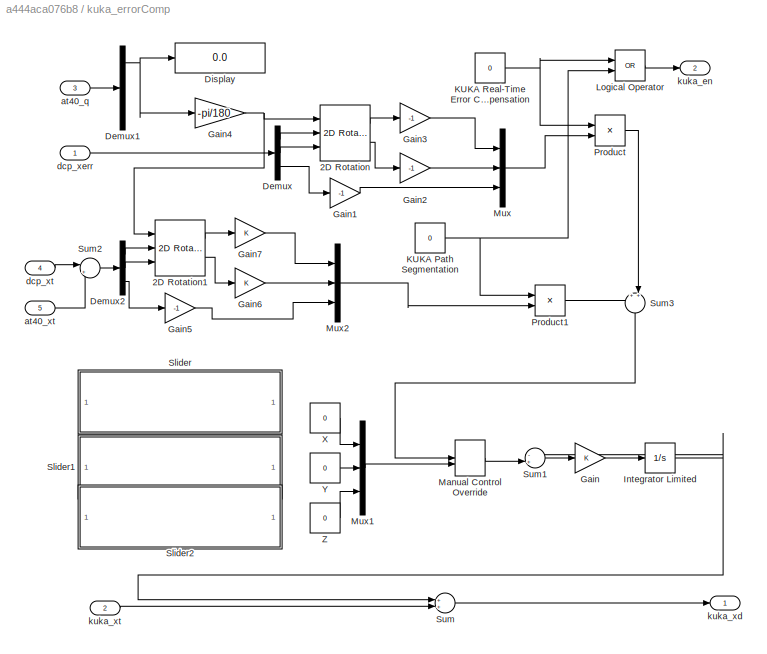
BLOCK [SubSystem] kuka_errorComp
  Ports = [5, 2]
  RequestExecContextInheritance = off
  Variant = off
BLOCK [Reference] kuka_errorComp/2D Rotation  REF=dcpctrl/2D Rotation
  Ports = [3, 2]
  SourceBlock = dcpctrl/2D Rotation
  SourceType = SubSystem
BLOCK [Reference] kuka_errorComp/2D Rotation1  REF=dcpctrl/2D Rotation
  Ports = [3, 2]
  SourceBlock = dcpctrl/2D Rotation
  SourceType = SubSystem
BLOCK [Demux] kuka_errorComp/Demux
  DisplayOption = bar
  Outputs = 3
  Ports = [1, 3]
BLOCK [Demux] kuka_errorComp/Demux1
  DisplayOption = bar
  Ports = [1, 4]
BLOCK [Demux] kuka_errorComp/Demux2
  DisplayOption = bar
  Outputs = 3
  Ports = [1, 3]
BLOCK [Display] kuka_errorComp/Display
  Decimation = 1
  Ports = [1]
BLOCK [Gain] kuka_errorComp/Gain
  OutDataTypeStr = Inherit: Inherit via internal rule
  ParamDataTypeStr = Inherit: Inherit via internal rule
  SaturateOnIntegerOverflow = off
BLOCK [Gain] kuka_errorComp/Gain1
  Gain = -1
  OutDataTypeStr = Inherit: Inherit via internal rule
  ParamDataTypeStr = Inherit: Inherit via internal rule
  SaturateOnIntegerOverflow = off
BLOCK [Gain] kuka_errorComp/Gain2
  Gain = -1
  OutDataTypeStr = Inherit: Inherit via internal rule
  ParamDataTypeStr = Inherit: Inherit via internal rule
  SaturateOnIntegerOverflow = off
BLOCK [Gain] kuka_errorComp/Gain3
  Gain = -1
  OutDataTypeStr = Inherit: Inherit via internal rule
  ParamDataTypeStr = Inherit: Inherit via internal rule
  SaturateOnIntegerOverflow = off
BLOCK [Gain] kuka_errorComp/Gain4
  Gain = -pi/180
  OutDataTypeStr = Inherit: Inherit via internal rule
  ParamDataTypeStr = Inherit: Inherit via internal rule
  SaturateOnIntegerOverflow = off
BLOCK [Gain] kuka_errorComp/Gain5
  Gain = -1
  OutDataTypeStr = Inherit: Inherit via internal rule
  ParamDataTypeStr = Inherit: Inherit via internal rule
  SaturateOnIntegerOverflow = off
BLOCK [Gain] kuka_errorComp/Gain6
  OutDataTypeStr = Inherit: Inherit via internal rule
  ParamDataTypeStr = Inherit: Inherit via internal rule
  SaturateOnIntegerOverflow = off
BLOCK [Gain] kuka_errorComp/Gain7
  OutDataTypeStr = Inherit: Inherit via internal rule
  ParamDataTypeStr = Inherit: Inherit via internal rule
  SaturateOnIntegerOverflow = off
BLOCK [Integrator] kuka_errorComp/Integrator Limited
  LimitOutput = on
  LowerSaturationLimit = -500
  Ports = [1, 1]
  UpperSaturationLimit = 500
BLOCK [Constant] kuka_errorComp/KUKA Path Segmentation
  Value = 0
BLOCK [Constant] kuka_errorComp/KUKA Real-Time Error Compensation
  Value = 0
BLOCK [Logic] kuka_errorComp/Logical Operator
  AllPortsSameDT = off
  Operator = OR
  OutDataTypeStr = boolean
  Ports = [2, 1]
BLOCK [ManualSwitch] kuka_errorComp/Manual Control Override
BLOCK [Mux] kuka_errorComp/Mux
  DisplayOption = bar
  Inputs = 3
  Ports = [3, 1]
BLOCK [Mux] kuka_errorComp/Mux1
  DisplayOption = bar
  Inputs = 3
  Ports = [3, 1]
BLOCK [Mux] kuka_errorComp/Mux2
  DisplayOption = bar
  Inputs = 3
  Ports = [3, 1]
BLOCK [Product] kuka_errorComp/Product
  InputSameDT = off
  OutDataTypeStr = Inherit: Inherit via internal rule
  Ports = [2, 1]
  RndMeth = Floor
  SaturateOnIntegerOverflow = off
BLOCK [Product] kuka_errorComp/Product1
  InputSameDT = off
  OutDataTypeStr = Inherit: Inherit via internal rule
  Ports = [2, 1]
  RndMeth = Floor
  SaturateOnIntegerOverflow = off
BLOCK [SubSystem] kuka_errorComp/Slider
  DialogController = hmiCreateDDGDialog
  IsWebBlock = on
  MaskHideContents = on
  Ports = []
  RequestExecContextInheritance = off
  Variant = off
BLOCK [SubSystem] kuka_errorComp/Slider1
  DialogController = hmiCreateDDGDialog
  IsWebBlock = on
  MaskHideContents = on
  Ports = []
  RequestExecContextInheritance = off
  Variant = off
BLOCK [SubSystem] kuka_errorComp/Slider2
  DialogController = hmiCreateDDGDialog
  IsWebBlock = on
  MaskHideContents = on
  Ports = []
  RequestExecContextInheritance = off
  Variant = off
BLOCK [Sum] kuka_errorComp/Sum
  InputSameDT = off
  OutDataTypeStr = Inherit: Inherit via internal rule
  Ports = [2, 1]
  SaturateOnIntegerOverflow = off
BLOCK [Sum] kuka_errorComp/Sum1
  IconShape = round
  InputSameDT = off
  Inputs = -+|
  OutDataTypeStr = Inherit: Inherit via internal rule
  Ports = [2, 1]
  SaturateOnIntegerOverflow = off
BLOCK [Sum] kuka_errorComp/Sum2
  IconShape = round
  InputSameDT = off
  Inputs = |+-
  OutDataTypeStr = Inherit: Inherit via internal rule
  Ports = [2, 1]
  SaturateOnIntegerOverflow = off
BLOCK [Sum] kuka_errorComp/Sum3
  IconShape = round
  InputSameDT = off
  Inputs = ++|
  OutDataTypeStr = Inherit: Inherit via internal rule
  Ports = [2, 1]
  SaturateOnIntegerOverflow = off
BLOCK [Constant] kuka_errorComp/X
  Value = 0
BLOCK [Constant] kuka_errorComp/Y
  Value = 0
BLOCK [Constant] kuka_errorComp/Z
  Value = 0
BLOCK [Inport] kuka_errorComp/at40_q
  IconDisplay = Port number
  Port = 3
BLOCK [Inport] kuka_errorComp/at40_xt
  IconDisplay = Port number
  Port = 5
BLOCK [Inport] kuka_errorComp/dcp_xerr
  IconDisplay = Port number
BLOCK [Inport] kuka_errorComp/dcp_xt
  IconDisplay = Port number
  Port = 4
BLOCK [Outport] kuka_errorComp/kuka_en
  IconDisplay = Port number
  Port = 2
BLOCK [Outport] kuka_errorComp/kuka_xd
  IconDisplay = Port number
BLOCK [Inport] kuka_errorComp/kuka_xt 
  IconDisplay = Port number
  Port = 2
BLOCK [Reference] qraw  REF=dcpctrl/qraw
  Ports = [0, 5]
  SourceBlock = dcpctrl/qraw
  SourceType = SubSystem
BLOCK [SubSystem] qraw2qjoint_filter
  Ports = [4, 2]
  RequestExecContextInheritance = off
  Variant = off
BLOCK [Mux] qraw2qjoint_filter/Mux
  DisplayOption = bar
  Ports = [4, 1]
BLOCK [Mux] qraw2qjoint_filter/Mux1
  DisplayOption = bar
  Ports = [4, 1]
BLOCK [Outport] qraw2qjoint_filter/q
  IconDisplay = Port number
BLOCK [Outport] qraw2qjoint_filter/qd
  IconDisplay = Port number
  Port = 2
BLOCK [Reference] qraw2qjoint_filter/qraw2q_J2  REF=dcpctrl/qraw2q_J2
  Ports = [1, 1]
  SourceBlock = dcpctrl/qraw2q_J2
  SourceType = SubSystem
BLOCK [Inport] qraw2qjoint_filter/qraw_J1
  IconDisplay = Port number
BLOCK [Inport] qraw2qjoint_filter/qraw_J2
  IconDisplay = Port number
  Port = 2
BLOCK [Inport] qraw2qjoint_filter/qraw_J3
  IconDisplay = Port number
  Port = 3
BLOCK [Inport] qraw2qjoint_filter/qraw_J4
  IconDisplay = Port number
  Port = 4
BLOCK [SubSystem] qraw2qjoint_filter/qrawcompfilt_J1
  Ports = [1, 2]
  RequestExecContextInheritance = off
  Variant = off
BLOCK [Demux] qraw2qjoint_filter/qrawcompfilt_J1/Demux
  DisplayOption = bar
  Outputs = 2
  Ports = [1, 2]
BLOCK [Demux] qraw2qjoint_filter/qrawcompfilt_J1/Demux1
  DisplayOption = bar
  Outputs = 2
  Ports = [1, 2]
BLOCK [DiscreteFir] qraw2qjoint_filter/qrawcompfilt_J1/Equal Moving Average
  Coefficients = repmat([1/50],1,50)
  InputPortMap = u0
  InputProcessing = Columns as channels (frame based)
  OutputPortMap = o0
  Ports = [1, 1]
BLOCK [Constant] qraw2qjoint_filter/qrawcompfilt_J1/J1 Absolute Reference
  Value = 5
BLOCK [Mux] qraw2qjoint_filter/qrawcompfilt_J1/Mux
  DisplayOption = bar
  Inputs = 2
  Ports = [2, 1]
BLOCK [Outport] qraw2qjoint_filter/qrawcompfilt_J1/q_J1
  IconDisplay = Port number
BLOCK [Outport] qraw2qjoint_filter/qrawcompfilt_J1/qd_J1
  IconDisplay = Port number
  Port = 2
BLOCK [Reference] qraw2qjoint_filter/qrawcompfilt_J1/qraw2q_J1  REF=dcpctrl/qraw2q_J1
  Ports = [1, 4]
  SourceBlock = dcpctrl/qraw2q_J1
  SourceType = SubSystem
BLOCK [Inport] qraw2qjoint_filter/qrawcompfilt_J1/qraw_J1
  IconDisplay = Port number
BLOCK [SubSystem] qraw2qjoint_filter/qrawcompfilt_J3
  Ports = [1, 2]
  RequestExecContextInheritance = off
  Variant = off
BLOCK [Reference] qraw2qjoint_filter/qrawcompfilt_J3/Complementary Filter  REF=dcpctrl/complementaryFilter
  Ports = [3, 1]
  SourceBlock = dcpctrl/complementaryFilter
  SourceType = SubSystem
BLOCK [Demux] qraw2qjoint_filter/qrawcompfilt_J3/Demux1
  DisplayOption = bar
  Outputs = 2
  Ports = [1, 2]
BLOCK [DiscreteFir] qraw2qjoint_filter/qrawcompfilt_J3/Equal Moving Average
  Coefficients = repmat([1/50],1,50)
  InputPortMap = u0
  InputProcessing = Columns as channels (frame based)
  OutputPortMap = o0
  Ports = [1, 1]
BLOCK [Mux] qraw2qjoint_filter/qrawcompfilt_J3/Mux1
  DisplayOption = bar
  Inputs = 3
  Ports = [3, 1]
BLOCK [Constant] qraw2qjoint_filter/qrawcompfilt_J3/compFiltTau_J4
  Value = 0.036
BLOCK [Outport] qraw2qjoint_filter/qrawcompfilt_J3/q_J3
  IconDisplay = Port number
BLOCK [Outport] qraw2qjoint_filter/qrawcompfilt_J3/qd_J3
  IconDisplay = Port number
  Port = 2
BLOCK [Reference] qraw2qjoint_filter/qrawcompfilt_J3/qraw2q_J3  REF=dcpctrl/qraw2q_J3
  Ports = [1, 2]
  SourceBlock = dcpctrl/qraw2q_J3
  SourceType = SubSystem
BLOCK [Inport] qraw2qjoint_filter/qrawcompfilt_J3/qraw_J3
  IconDisplay = Port number
BLOCK [SubSystem] qraw2qjoint_filter/qrawcompfilt_J4
  Ports = [1, 2]
  RequestExecContextInheritance = off
  Variant = off
BLOCK [Reference] qraw2qjoint_filter/qrawcompfilt_J4/Complementary Filter  REF=dcpctrl/complementaryFilter
  Ports = [3, 1]
  SourceBlock = dcpctrl/complementaryFilter
  SourceType = SubSystem
BLOCK [Demux] qraw2qjoint_filter/qrawcompfilt_J4/Demux1
  DisplayOption = bar
  Outputs = 2
  Ports = [1, 2]
BLOCK [DiscreteFir] qraw2qjoint_filter/qrawcompfilt_J4/Equal Moving Average
  Coefficients = repmat([1/50],1,50)
  InputPortMap = u0
  InputProcessing = Columns as channels (frame based)
  OutputPortMap = o0
  Ports = [1, 1]
BLOCK [Mux] qraw2qjoint_filter/qrawcompfilt_J4/Mux1
  DisplayOption = bar
  Inputs = 3
  Ports = [3, 1]
BLOCK [Constant] qraw2qjoint_filter/qrawcompfilt_J4/compFiltTau_J4
  Value = 0.036
BLOCK [Outport] qraw2qjoint_filter/qrawcompfilt_J4/q_J4
  IconDisplay = Port number
BLOCK [Outport] qraw2qjoint_filter/qrawcompfilt_J4/qd_J4
  IconDisplay = Port number
  Port = 2
BLOCK [Reference] qraw2qjoint_filter/qrawcompfilt_J4/qraw2q_J4  REF=dcpctrl/qraw2q_J4
  Ports = [1, 2]
  SourceBlock = dcpctrl/qraw2q_J4
  SourceType = SubSystem
BLOCK [Inport] qraw2qjoint_filter/qrawcompfilt_J4/qraw_J4
  IconDisplay = Port number
BLOCK [Reference] trajEnable  REF=dcpctrl/trajEnable
  Ports = [3, 13]
  SourceBlock = dcpctrl/trajEnable
  SourceType = SubSystem
BLOCK [Scope] trajrecord
  NumInputPorts = 1
  Ports = [1]
  ScopeSpecificationString = Simulink.scopes.TimeScopeBlockCfg('CurrentConfiguration', extmgr.ConfigurationSet(extmgr.Configuration('Core','General UI',true),extmgr.Configuration('Core','Source UI',true),extmgr.Configuration('Sources','WiredSimulink',true,'DataLoggingVariableName','ScopeData1'),extmgr.Configuration('Visuals','Time Domain',true,'SerializedDisplays',{struct('MinYLimReal','-1174.19484','MaxYLimReal','5847.22149'...<+1665ch>
ANNOTATION Control Panel: KUKA Path Segmentation
ANNOTATION Control Panel: KUKA Error Compensation
ANNOTATION Control Panel: Joint Positions
ANNOTATION Control Panel: KUKA
ANNOTATION Control Panel: Trajectory Control & Visualization
ANNOTATION Gain Tuning: q Integral Gain
ANNOTATION Gain Tuning: q Proportional Gain
ANNOTATION Gain Tuning: qd Feedforward Gain
ANNOTATION Gain Tuning: qd Integral Gain
ANNOTATION Gain Tuning: qd Proportional Gain
ANNOTATION qraw2qjoint_filter/qrawcompfilt_J1: NOTE: This function still requires refinement after the J1 absolute sensor is installed. Tasks include: - Replacing complementary filter (or other appropriate filtering) - Re-enabling J1 absolute input (removing J1 Absolute Reference block)
NET AT40GW_PosVelCtrl/ENABLE:1 -> AT40GW_PosVelCtrl/Integrator1:2, AT40GW_PosVelCtrl/Integrator:2
LINE AT40GW_PosVelCtrl/Error Signal Zero Offset:1 -> AT40GW_PosVelCtrl/PWMmap:2
LINE AT40GW_PosVelCtrl/GainInv_qI:1 -> AT40GW_PosVelCtrl/Sum3:2
LINE AT40GW_PosVelCtrl/GainInv_qP:1 -> AT40GW_PosVelCtrl/Sum3:3
LINE AT40GW_PosVelCtrl/GainInv_qdI:1 -> AT40GW_PosVelCtrl/Sum2:2
LINE AT40GW_PosVelCtrl/GainInv_qdP:1 -> AT40GW_PosVelCtrl/Sum2:1
LINE AT40GW_PosVelCtrl/GainInv_qdff:1 -> AT40GW_PosVelCtrl/Sum3:1
LINE AT40GW_PosVelCtrl/Integrator1:1 -> AT40GW_PosVelCtrl/Product4:1
LINE AT40GW_PosVelCtrl/Integrator:1 -> AT40GW_PosVelCtrl/Product3:1
LINE AT40GW_PosVelCtrl/JointActivate:1 -> AT40GW_PosVelCtrl/PWMmap:1
LINE AT40GW_PosVelCtrl/PWM Gain:1 -> AT40GW_PosVelCtrl/PWMmap:3
LINE AT40GW_PosVelCtrl/PWM Zero Offset:1 -> AT40GW_PosVelCtrl/PWMmap:4
LINE AT40GW_PosVelCtrl/PWMmap:1 -> AT40GW_PosVelCtrl/pwm:1
LINE AT40GW_PosVelCtrl/Product1:1 -> AT40GW_PosVelCtrl/GainInv_qP:1
LINE AT40GW_PosVelCtrl/Product2:1 -> AT40GW_PosVelCtrl/GainInv_qdff:1
LINE AT40GW_PosVelCtrl/Product3:1 -> AT40GW_PosVelCtrl/GainInv_qdI:1
LINE AT40GW_PosVelCtrl/Product4:1 -> AT40GW_PosVelCtrl/GainInv_qI:1
LINE AT40GW_PosVelCtrl/Product:1 -> AT40GW_PosVelCtrl/GainInv_qdP:1
NET AT40GW_PosVelCtrl/Sum1:1 -> AT40GW_PosVelCtrl/Integrator:1, AT40GW_PosVelCtrl/Product:1, AT40GW_PosVelCtrl/qderr:1
LINE AT40GW_PosVelCtrl/Sum2:1 -> AT40GW_PosVelCtrl/JointActivate:1
LINE AT40GW_PosVelCtrl/Sum3:1 -> AT40GW_PosVelCtrl/Sum1:2
NET AT40GW_PosVelCtrl/Sum:1 -> AT40GW_PosVelCtrl/Integrator1:1, AT40GW_PosVelCtrl/Product1:1, AT40GW_PosVelCtrl/qerr:1
LINE AT40GW_PosVelCtrl/q:1 -> AT40GW_PosVelCtrl/Sum:1
LINE AT40GW_PosVelCtrl/q_I 10^n Gain Adjustment/GainAdj_J1qI:1 -> AT40GW_PosVelCtrl/q_I 10^n Gain Adjustment/Math Function:1
LINE AT40GW_PosVelCtrl/q_I 10^n Gain Adjustment/GainAdj_J2qI:1 -> AT40GW_PosVelCtrl/q_I 10^n Gain Adjustment/Math Function1:1
LINE AT40GW_PosVelCtrl/q_I 10^n Gain Adjustment/GainAdj_J3qI:1 -> AT40GW_PosVelCtrl/q_I 10^n Gain Adjustment/Math Function2:1
LINE AT40GW_PosVelCtrl/q_I 10^n Gain Adjustment/GainAdj_J4qI:1 -> AT40GW_PosVelCtrl/q_I 10^n Gain Adjustment/Math Function3:1
LINE AT40GW_PosVelCtrl/q_I 10^n Gain Adjustment/Math Function1:1 -> AT40GW_PosVelCtrl/q_I 10^n Gain Adjustment/Mux1:2
LINE AT40GW_PosVelCtrl/q_I 10^n Gain Adjustment/Math Function2:1 -> AT40GW_PosVelCtrl/q_I 10^n Gain Adjustment/Mux1:3
LINE AT40GW_PosVelCtrl/q_I 10^n Gain Adjustment/Math Function3:1 -> AT40GW_PosVelCtrl/q_I 10^n Gain Adjustment/Mux1:4
LINE AT40GW_PosVelCtrl/q_I 10^n Gain Adjustment/Math Function:1 -> AT40GW_PosVelCtrl/q_I 10^n Gain Adjustment/Mux1:1
LINE AT40GW_PosVelCtrl/q_I 10^n Gain Adjustment/Mux1:1 -> AT40GW_PosVelCtrl/q_I 10^n Gain Adjustment/Out1:1
NET AT40GW_PosVelCtrl/q_I 10^n Gain Adjustment:1 -> AT40GW_PosVelCtrl/Product4:2, AT40GW_PosVelCtrl/q_Igainadj:1
LINE AT40GW_PosVelCtrl/q_P 10^n Gain Adjustment/GainAdj_J1qP:1 -> AT40GW_PosVelCtrl/q_P 10^n Gain Adjustment/Math Function:1
LINE AT40GW_PosVelCtrl/q_P 10^n Gain Adjustment/GainAdj_J2qP:1 -> AT40GW_PosVelCtrl/q_P 10^n Gain Adjustment/Mux1:2
LINE AT40GW_PosVelCtrl/q_P 10^n Gain Adjustment/GainAdj_J3qP:1 -> AT40GW_PosVelCtrl/q_P 10^n Gain Adjustment/Math Function2:1
LINE AT40GW_PosVelCtrl/q_P 10^n Gain Adjustment/GainAdj_J4qP:1 -> AT40GW_PosVelCtrl/q_P 10^n Gain Adjustment/Math Function3:1
LINE AT40GW_PosVelCtrl/q_P 10^n Gain Adjustment/Math Function2:1 -> AT40GW_PosVelCtrl/q_P 10^n Gain Adjustment/Mux1:3
LINE AT40GW_PosVelCtrl/q_P 10^n Gain Adjustment/Math Function3:1 -> AT40GW_PosVelCtrl/q_P 10^n Gain Adjustment/Mux1:4
LINE AT40GW_PosVelCtrl/q_P 10^n Gain Adjustment/Math Function:1 -> AT40GW_PosVelCtrl/q_P 10^n Gain Adjustment/Mux1:1
LINE AT40GW_PosVelCtrl/q_P 10^n Gain Adjustment/Mux1:1 -> AT40GW_PosVelCtrl/q_P 10^n Gain Adjustment/Out1:1
NET AT40GW_PosVelCtrl/q_P 10^n Gain Adjustment:1 -> AT40GW_PosVelCtrl/Product1:2, AT40GW_PosVelCtrl/q_pgainadj:1
LINE AT40GW_PosVelCtrl/qd:1 -> AT40GW_PosVelCtrl/Sum1:1
LINE AT40GW_PosVelCtrl/qd_FF 10^n Gain Adjustment/GainAdj_J1qdFF:1 -> AT40GW_PosVelCtrl/qd_FF 10^n Gain Adjustment/Math Function:1
LINE AT40GW_PosVelCtrl/qd_FF 10^n Gain Adjustment/GainAdj_J2qdFF:1 -> AT40GW_PosVelCtrl/qd_FF 10^n Gain Adjustment/Math Function1:1
LINE AT40GW_PosVelCtrl/qd_FF 10^n Gain Adjustment/GainAdj_J3qdFF:1 -> AT40GW_PosVelCtrl/qd_FF 10^n Gain Adjustment/Math Function2:1
LINE AT40GW_PosVelCtrl/qd_FF 10^n Gain Adjustment/GainAdj_J4qd FF:1 -> AT40GW_PosVelCtrl/qd_FF 10^n Gain Adjustment/Math Function3:1
LINE AT40GW_PosVelCtrl/qd_FF 10^n Gain Adjustment/Math Function1:1 -> AT40GW_PosVelCtrl/qd_FF 10^n Gain Adjustment/Mux1:2
LINE AT40GW_PosVelCtrl/qd_FF 10^n Gain Adjustment/Math Function2:1 -> AT40GW_PosVelCtrl/qd_FF 10^n Gain Adjustment/Mux1:3
LINE AT40GW_PosVelCtrl/qd_FF 10^n Gain Adjustment/Math Function3:1 -> AT40GW_PosVelCtrl/qd_FF 10^n Gain Adjustment/Mux1:4
LINE AT40GW_PosVelCtrl/qd_FF 10^n Gain Adjustment/Math Function:1 -> AT40GW_PosVelCtrl/qd_FF 10^n Gain Adjustment/Mux1:1
LINE AT40GW_PosVelCtrl/qd_FF 10^n Gain Adjustment/Mux1:1 -> AT40GW_PosVelCtrl/qd_FF 10^n Gain Adjustment/Out1:1
NET AT40GW_PosVelCtrl/qd_FF 10^n Gain Adjustment:1 -> AT40GW_PosVelCtrl/Product2:2, AT40GW_PosVelCtrl/qd_ffgainadj:1
LINE AT40GW_PosVelCtrl/qd_I 10^n Gain Adjustment/GainAdj_J1qdI:1 -> AT40GW_PosVelCtrl/qd_I 10^n Gain Adjustment/Math Function:1
LINE AT40GW_PosVelCtrl/qd_I 10^n Gain Adjustment/GainAdj_J2qdI:1 -> AT40GW_PosVelCtrl/qd_I 10^n Gain Adjustment/Math Function1:1
LINE AT40GW_PosVelCtrl/qd_I 10^n Gain Adjustment/GainAdj_J3qdI:1 -> AT40GW_PosVelCtrl/qd_I 10^n Gain Adjustment/Math Function2:1
LINE AT40GW_PosVelCtrl/qd_I 10^n Gain Adjustment/GainAdj_J4qdI:1 -> AT40GW_PosVelCtrl/qd_I 10^n Gain Adjustment/Math Function3:1
LINE AT40GW_PosVelCtrl/qd_I 10^n Gain Adjustment/Math Function1:1 -> AT40GW_PosVelCtrl/qd_I 10^n Gain Adjustment/Mux1:2
LINE AT40GW_PosVelCtrl/qd_I 10^n Gain Adjustment/Math Function2:1 -> AT40GW_PosVelCtrl/qd_I 10^n Gain Adjustment/Mux1:3
LINE AT40GW_PosVelCtrl/qd_I 10^n Gain Adjustment/Math Function3:1 -> AT40GW_PosVelCtrl/qd_I 10^n Gain Adjustment/Mux1:4
LINE AT40GW_PosVelCtrl/qd_I 10^n Gain Adjustment/Math Function:1 -> AT40GW_PosVelCtrl/qd_I 10^n Gain Adjustment/Mux1:1
LINE AT40GW_PosVelCtrl/qd_I 10^n Gain Adjustment/Mux1:1 -> AT40GW_PosVelCtrl/qd_I 10^n Gain Adjustment/Out1:1
NET AT40GW_PosVelCtrl/qd_I 10^n Gain Adjustment:1 -> AT40GW_PosVelCtrl/Product3:2, AT40GW_PosVelCtrl/qd_Igainadj:1
LINE AT40GW_PosVelCtrl/qd_P 10^n Gain Adjustment/GainAdj_J1qdP:1 -> AT40GW_PosVelCtrl/qd_P 10^n Gain Adjustment/Math Function:1
LINE AT40GW_PosVelCtrl/qd_P 10^n Gain Adjustment/GainAdj_J2qdP:1 -> AT40GW_PosVelCtrl/qd_P 10^n Gain Adjustment/Math Function1:1
LINE AT40GW_PosVelCtrl/qd_P 10^n Gain Adjustment/GainAdj_J3qdP:1 -> AT40GW_PosVelCtrl/qd_P 10^n Gain Adjustment/Math Function2:1
LINE AT40GW_PosVelCtrl/qd_P 10^n Gain Adjustment/GainAdj_J4qdP:1 -> AT40GW_PosVelCtrl/qd_P 10^n Gain Adjustment/Math Function3:1
LINE AT40GW_PosVelCtrl/qd_P 10^n Gain Adjustment/Math Function1:1 -> AT40GW_PosVelCtrl/qd_P 10^n Gain Adjustment/Mux1:2
LINE AT40GW_PosVelCtrl/qd_P 10^n Gain Adjustment/Math Function2:1 -> AT40GW_PosVelCtrl/qd_P 10^n Gain Adjustment/Mux1:3
LINE AT40GW_PosVelCtrl/qd_P 10^n Gain Adjustment/Math Function3:1 -> AT40GW_PosVelCtrl/qd_P 10^n Gain Adjustment/Mux1:4
LINE AT40GW_PosVelCtrl/qd_P 10^n Gain Adjustment/Math Function:1 -> AT40GW_PosVelCtrl/qd_P 10^n Gain Adjustment/Mux1:1
LINE AT40GW_PosVelCtrl/qd_P 10^n Gain Adjustment/Mux1:1 -> AT40GW_PosVelCtrl/qd_P 10^n Gain Adjustment/Out1:1
NET AT40GW_PosVelCtrl/qd_P 10^n Gain Adjustment:1 -> AT40GW_PosVelCtrl/Product:2, AT40GW_PosVelCtrl/qd_pgainadj:1
LINE AT40GW_PosVelCtrl/qdtraj:1 -> AT40GW_PosVelCtrl/Product2:1
LINE AT40GW_PosVelCtrl/qtraj:1 -> AT40GW_PosVelCtrl/Sum:2
LINE AT40GW_PosVelCtrl:1 -> AT40GW_qScope:3
LINE AT40GW_PosVelCtrl:2 -> AT40GW_qdScope:3
LINE AT40GW_PosVelCtrl:3 -> Gain Tuning:1
LINE AT40GW_PosVelCtrl:4 -> Gain Tuning:2
LINE AT40GW_PosVelCtrl:5 -> Gain Tuning:3
LINE AT40GW_PosVelCtrl:6 -> Gain Tuning:4
LINE AT40GW_PosVelCtrl:7 -> Gain Tuning:5
NET AT40GW_PosVelCtrl:8 -> AT40GW_qScope:4, AT40GW_qdScope:4, PWMOut:2
LINE Cartesian Position Vizualization/Mux1:1 -> Cartesian Position Vizualization/trajrecord:1
LINE Cartesian Position Vizualization/Mux:1 -> Cartesian Position Vizualization/trajviz:1
LINE Cartesian Position Vizualization/Sum1:1 -> Cartesian Position Vizualization/dcp_xerr:1
LINE Cartesian Position Vizualization/Sum:1 -> Cartesian Position Vizualization/Mux:1
LINE Cartesian Position Vizualization/at40_q:1 -> Cartesian Position Vizualization/fkine_at40gw:1
LINE Cartesian Position Vizualization/at40_qdes:1 -> Cartesian Position Vizualization/fkine_at40gw1:1
NET Cartesian Position Vizualization/dcp_xdes:1 -> Cartesian Position Vizualization/Mux1:1, Cartesian Position Vizualization/Mux:2, Cartesian Position Vizualization/Sum1:2
NET Cartesian Position Vizualization/fkine_at40gw1:1 -> Cartesian Position Vizualization/Mux1:2, Cartesian Position Vizualization/at40_xt:1
NET Cartesian Position Vizualization/fkine_at40gw:1 -> Cartesian Position Vizualization/Mux1:3, Cartesian Position Vizualization/Sum1:1, Cartesian Position Vizualization/Sum:2
NET Cartesian Position Vizualization/kuka_x:1 -> Cartesian Position Vizualization/Mux1:4, Cartesian Position Vizualization/Sum:1
LINE Cartesian Position Vizualization:1 -> Control Panel:1
LINE Cartesian Position Vizualization:2 -> kuka_errorComp:1
LINE Cartesian Position Vizualization:3 -> trajrecord:1
LINE Cartesian Position Vizualization:4 -> kuka_errorComp:5
LINE Control Panel/Demux1:1 -> Control Panel/q_J1:1
LINE Control Panel/Demux1:2 -> Control Panel/q_J2:1
LINE Control Panel/Demux1:3 -> Control Panel/q_J3:1
LINE Control Panel/Demux1:4 -> Control Panel/q_J4:1
LINE Control Panel/Demux2:1 -> Control Panel/qstart_J1:1
LINE Control Panel/Demux2:2 -> Control Panel/qstart_J2:1
LINE Control Panel/Demux2:3 -> Control Panel/qstart_J3:1
LINE Control Panel/Demux2:4 -> Control Panel/qstart_J4:1
LINE Control Panel/Gain:1 -> Control Panel/Mux:1
LINE Control Panel/IPOC:1 -> Control Panel/KUKA IPOC:1
LINE Control Panel/Mux:1 -> Control Panel/Rate Transition:1
LINE Control Panel/Rate Transition:1 -> Control Panel/Trajectory Visualization:1
LINE Control Panel/qcur:1 -> Control Panel/Demux1:1
LINE Control Panel/qstart:1 -> Control Panel/Demux2:1
LINE Control Panel/starttime:1 -> Control Panel/Trajectory Start TIME:1
LINE Control Panel/trajreset:1 -> Control Panel/Mux:2
LINE Control Panel/trajtime:1 -> Control Panel/Trajectory Time:1
LINE Control Panel/trajviz:1 -> Control Panel/Gain:1
LINE Demux:1 -> Logical Operator1:2
LINE Demux:2 -> Logical Operator3:1
LINE Demux:4 -> LIFXcontrol:2
LINE Gain Tuning/Demux2:1 -> Gain Tuning/J1Gain_qdI:1
LINE Gain Tuning/Demux2:3 -> Gain Tuning/J3Gain_qdI:1
LINE Gain Tuning/Demux2:4 -> Gain Tuning/J4Gain_qdI:1
LINE Gain Tuning/Demux3:1 -> Gain Tuning/J1Gain_qdFF:1
LINE Gain Tuning/Demux3:3 -> Gain Tuning/J3Gain_qdFF:1
LINE Gain Tuning/Demux3:4 -> Gain Tuning/J4Gain_qdFF:1
LINE Gain Tuning/Demux4:1 -> Gain Tuning/J1Gain_qdP1:1
LINE Gain Tuning/Demux4:3 -> Gain Tuning/J3Gain_qdP1:1
LINE Gain Tuning/Demux4:4 -> Gain Tuning/J4Gain_qdP1:1
LINE Gain Tuning/Demux5:1 -> Gain Tuning/J1Gain_qI:1
LINE Gain Tuning/Demux5:3 -> Gain Tuning/J3Gain_qI:1
LINE Gain Tuning/Demux5:4 -> Gain Tuning/J4Gain_qI:1
LINE Gain Tuning/Demux:1 -> Gain Tuning/J1Gain_qdP:1
LINE Gain Tuning/Demux:3 -> Gain Tuning/J3Gain_qdP:1
LINE Gain Tuning/Demux:4 -> Gain Tuning/J4Gain_qdP:1
LINE Gain Tuning/q_igain:1 -> Gain Tuning/Demux5:1
LINE Gain Tuning/q_pgain:1 -> Gain Tuning/Demux4:1
LINE Gain Tuning/qd_ffgain:1 -> Gain Tuning/Demux3:1
LINE Gain Tuning/qd_igain:1 -> Gain Tuning/Demux2:1
LINE Gain Tuning/qd_pgain:1 -> Gain Tuning/Demux:1
LINE KUKA_xctrl/Compare To Zero:1 -> KUKA_xctrl/Product:2
LINE KUKA_xctrl/Complex to Real-Imag:1 -> KUKA_xctrl/getInitState1:1
LINE KUKA_xctrl/Demux1:1 -> KUKA_xctrl/Mux1:1
LINE KUKA_xctrl/Demux1:2 -> KUKA_xctrl/Mux2:1
LINE KUKA_xctrl/Demux1:3 -> KUKA_xctrl/Mux3:1
LINE KUKA_xctrl/Demux2:1 -> KUKA_xctrl/Mux1:2
LINE KUKA_xctrl/Demux2:2 -> KUKA_xctrl/Mux2:2
LINE KUKA_xctrl/Demux2:3 -> KUKA_xctrl/Mux3:2
LINE KUKA_xctrl/Demux:1 -> KUKA_xctrl/KUKASimulinkCtrl:1
LINE KUKA_xctrl/Demux:2 -> KUKA_xctrl/KUKASimulinkCtrl:2
LINE KUKA_xctrl/Demux:3 -> KUKA_xctrl/KUKASimulinkCtrl:3
LINE KUKA_xctrl/Gain:1 -> KUKA_xctrl/Product:1
LINE KUKA_xctrl/KUKASimulinkCtrl:1 -> KUKA_xctrl/Mux:1
LINE KUKA_xctrl/KUKASimulinkCtrl:14 -> KUKA_xctrl/IPOC:1
LINE KUKA_xctrl/KUKASimulinkCtrl:16 -> KUKA_xctrl/getInitState1:2
LINE KUKA_xctrl/KUKASimulinkCtrl:2 -> KUKA_xctrl/Mux:2
LINE KUKA_xctrl/KUKASimulinkCtrl:3 -> KUKA_xctrl/Mux:3
LINE KUKA_xctrl/Mux1:1 -> KUKA_xctrl/DCP Scope:1
LINE KUKA_xctrl/Mux2:1 -> KUKA_xctrl/DCP Scope:2
LINE KUKA_xctrl/Mux3:1 -> KUKA_xctrl/DCP Scope:3
LINE KUKA_xctrl/Mux:1 -> KUKA_xctrl/Complex to Real-Imag:1
LINE KUKA_xctrl/Product:1 -> KUKA_xctrl/Demux:1
LINE KUKA_xctrl/Sum3:1 -> KUKA_xctrl/Gain:1
NET KUKA_xctrl/Sum4:1 -> KUKA_xctrl/Demux2:1, KUKA_xctrl/Sum3:1, KUKA_xctrl/kuka_x:1
LINE KUKA_xctrl/getInitState1:1 -> KUKA_xctrl/Sum4:1
LINE KUKA_xctrl/getInitState1:2 -> KUKA_xctrl/Sum4:2
LINE KUKA_xctrl/kuka_EN:1 -> KUKA_xctrl/Compare To Zero:1
NET KUKA_xctrl/kuka_xt   :1 -> KUKA_xctrl/Demux1:1, KUKA_xctrl/Sum3:2
LINE KUKA_xctrl:1 -> Control Panel:7
LINE KUKA_xctrl:2 -> Cartesian Position Vizualization:2
LINE LIFXcontrol/Compare To Zero:1 -> LIFXcontrol/Product:2
LINE LIFXcontrol/Constant3:1 -> LIFXcontrol/Hue Changer:4
LINE LIFXcontrol/Demux:1 -> LIFXcontrol/Gain:1
LINE LIFXcontrol/Demux:2 -> LIFXcontrol/Hue Changer:2
LINE LIFXcontrol/Demux:3 -> LIFXcontrol/Product:1
LINE LIFXcontrol/Gain:1 -> LIFXcontrol/Rounding Function:1
LINE LIFXcontrol/Hue Changer:1 -> LIFXcontrol/Rate Transition:1
LINE LIFXcontrol/Product:1 -> LIFXcontrol/Hue Changer:3
LINE LIFXcontrol/Rate Transition:1 -> LIFXcontrol/Stream Output:1
NET LIFXcontrol/Rounding Function:1 -> LIFXcontrol/Hue Changer:1, LIFXcontrol/qstart_J4:1
LINE LIFXcontrol/tool:1 -> LIFXcontrol/Demux:1
LINE LIFXcontrol/tool_EN:1 -> LIFXcontrol/Compare To Zero:1
LINE Logical Operator1:1 -> PWMOut:1
LINE Logical Operator3:1 -> KUKA_xctrl:2
NET Logical Operator:1 -> AT40GW_PosVelCtrl:5, Logical Operator1:1, trajEnable:1
NET TrajReset:1 -> Control Panel:5, at40_qstart:1, trajEnable:2
LINE at40_qstart/Logical Operator2:1 -> at40_qstart/getInitState:2
LINE at40_qstart/Step1:1 -> at40_qstart/Sum:2
LINE at40_qstart/Step:1 -> at40_qstart/Sum:1
LINE at40_qstart/Sum:1 -> at40_qstart/Logical Operator2:1
LINE at40_qstart/at40_qt:1 -> at40_qstart/getInitState:1
LINE at40_qstart/getInitState:1 -> at40_qstart/qstart:1
LINE at40_qstart/trajreset:1 -> at40_qstart/Logical Operator2:2
LINE at40_qstart:1 -> Control Panel:3
NET dcpSafety:1 -> Logical Operator:1, Terminator:1
LINE dcpSafety:2 -> Logical Operator:2
LINE dcpTrajectory:1 -> trajEnable:3
LINE kuka_errorComp/2D Rotation1:1 -> kuka_errorComp/Gain7:1
LINE kuka_errorComp/2D Rotation1:2 -> kuka_errorComp/Gain6:1
LINE kuka_errorComp/2D Rotation:1 -> kuka_errorComp/Gain3:1
LINE kuka_errorComp/2D Rotation:2 -> kuka_errorComp/Gain2:1
NET kuka_errorComp/Demux1:1 -> kuka_errorComp/Display:1, kuka_errorComp/Gain4:1
LINE kuka_errorComp/Demux2:1 -> kuka_errorComp/2D Rotation1:2
LINE kuka_errorComp/Demux2:2 -> kuka_errorComp/2D Rotation1:3
LINE kuka_errorComp/Demux2:3 -> kuka_errorComp/Gain5:1
LINE kuka_errorComp/Demux:1 -> kuka_errorComp/2D Rotation:2
LINE kuka_errorComp/Demux:2 -> kuka_errorComp/2D Rotation:3
LINE kuka_errorComp/Demux:3 -> kuka_errorComp/Gain1:1
LINE kuka_errorComp/Gain1:1 -> kuka_errorComp/Mux:3
LINE kuka_errorComp/Gain2:1 -> kuka_errorComp/Mux:2
LINE kuka_errorComp/Gain3:1 -> kuka_errorComp/Mux:1
NET kuka_errorComp/Gain4:1 -> kuka_errorComp/2D Rotation1:1, kuka_errorComp/2D Rotation:1
LINE kuka_errorComp/Gain5:1 -> kuka_errorComp/Mux2:3
LINE kuka_errorComp/Gain6:1 -> kuka_errorComp/Mux2:2
LINE kuka_errorComp/Gain7:1 -> kuka_errorComp/Mux2:1
LINE kuka_errorComp/Gain:1 -> kuka_errorComp/Integrator Limited:1
NET kuka_errorComp/Integrator Limited:1 -> kuka_errorComp/Sum1:1, kuka_errorComp/Sum:1
NET kuka_errorComp/KUKA Path Segmentation:1 -> kuka_errorComp/Logical Operator:2, kuka_errorComp/Product1:1
NET kuka_errorComp/KUKA Real-Time Error Compensation:1 -> kuka_errorComp/Logical Operator:1, kuka_errorComp/Product:1
LINE kuka_errorComp/Logical Operator:1 -> kuka_errorComp/kuka_en:1
LINE kuka_errorComp/Manual Control Override:1 -> kuka_errorComp/Sum1:2
LINE kuka_errorComp/Mux1:1 -> kuka_errorComp/Manual Control Override:2
LINE kuka_errorComp/Mux2:1 -> kuka_errorComp/Product1:2
LINE kuka_errorComp/Mux:1 -> kuka_errorComp/Product:2
LINE kuka_errorComp/Product1:1 -> kuka_errorComp/Sum3:1
LINE kuka_errorComp/Product:1 -> kuka_errorComp/Sum3:2
LINE kuka_errorComp/Sum1:1 -> kuka_errorComp/Gain:1
LINE kuka_errorComp/Sum2:1 -> kuka_errorComp/Demux2:1
LINE kuka_errorComp/Sum3:1 -> kuka_errorComp/Manual Control Override:1
LINE kuka_errorComp/Sum:1 -> kuka_errorComp/kuka_xd:1
LINE kuka_errorComp/X:1 -> kuka_errorComp/Mux1:1
LINE kuka_errorComp/Y:1 -> kuka_errorComp/Mux1:2
LINE kuka_errorComp/Z:1 -> kuka_errorComp/Mux1:3
LINE kuka_errorComp/at40_q:1 -> kuka_errorComp/Demux1:1
LINE kuka_errorComp/at40_xt:1 -> kuka_errorComp/Sum2:2
LINE kuka_errorComp/dcp_xerr:1 -> kuka_errorComp/Demux:1
LINE kuka_errorComp/dcp_xt:1 -> kuka_errorComp/Sum2:1
LINE kuka_errorComp/kuka_xt :1 -> kuka_errorComp/Sum:2
LINE kuka_errorComp:1 -> KUKA_xctrl:1
LINE kuka_errorComp:2 -> Logical Operator3:2
LINE qraw2qjoint_filter/Mux1:1 -> qraw2qjoint_filter/qd:1
LINE qraw2qjoint_filter/Mux:1 -> qraw2qjoint_filter/q:1
LINE qraw2qjoint_filter/qraw2q_J2:1 -> qraw2qjoint_filter/Mux:2
LINE qraw2qjoint_filter/qraw_J1:1 -> qraw2qjoint_filter/qrawcompfilt_J1:1
LINE qraw2qjoint_filter/qraw_J2:1 -> qraw2qjoint_filter/qraw2q_J2:1
LINE qraw2qjoint_filter/qraw_J3:1 -> qraw2qjoint_filter/qrawcompfilt_J3:1
LINE qraw2qjoint_filter/qraw_J4:1 -> qraw2qjoint_filter/qrawcompfilt_J4:1
LINE qraw2qjoint_filter/qrawcompfilt_J1/Demux1:1 -> qraw2qjoint_filter/qrawcompfilt_J1/q_J1:1
LINE qraw2qjoint_filter/qrawcompfilt_J1/Demux:1 -> qraw2qjoint_filter/qrawcompfilt_J1/Mux:1
LINE qraw2qjoint_filter/qrawcompfilt_J1/Demux:2 -> qraw2qjoint_filter/qrawcompfilt_J1/Mux:2
LINE qraw2qjoint_filter/qrawcompfilt_J1/Equal Moving Average:1 -> qraw2qjoint_filter/qrawcompfilt_J1/qd_J1:1
LINE qraw2qjoint_filter/qrawcompfilt_J1/Mux:1 -> qraw2qjoint_filter/qrawcompfilt_J1/qraw2q_J1:1
LINE qraw2qjoint_filter/qrawcompfilt_J1/qraw2q_J1:1 -> qraw2qjoint_filter/qrawcompfilt_J1/Demux1:1
LINE qraw2qjoint_filter/qrawcompfilt_J1/qraw2q_J1:2 -> qraw2qjoint_filter/qrawcompfilt_J1/Equal Moving Average:1
LINE qraw2qjoint_filter/qrawcompfilt_J1/qraw_J1:1 -> qraw2qjoint_filter/qrawcompfilt_J1/Demux:1
LINE qraw2qjoint_filter/qrawcompfilt_J1:1 -> qraw2qjoint_filter/Mux:1
LINE qraw2qjoint_filter/qrawcompfilt_J1:2 -> qraw2qjoint_filter/Mux1:1
LINE qraw2qjoint_filter/qrawcompfilt_J3/Complementary Filter:1 -> qraw2qjoint_filter/qrawcompfilt_J3/q_J3:1
LINE qraw2qjoint_filter/qrawcompfilt_J3/Demux1:1 -> qraw2qjoint_filter/qrawcompfilt_J3/Mux1:2
NET qraw2qjoint_filter/qrawcompfilt_J3/Demux1:2 -> qraw2qjoint_filter/qrawcompfilt_J3/Complementary Filter:2, qraw2qjoint_filter/qrawcompfilt_J3/Mux1:1
LINE qraw2qjoint_filter/qrawcompfilt_J3/Equal Moving Average:1 -> qraw2qjoint_filter/qrawcompfilt_J3/qd_J3:1
LINE qraw2qjoint_filter/qrawcompfilt_J3/compFiltTau_J4:1 -> qraw2qjoint_filter/qrawcompfilt_J3/Complementary Filter:3
LINE qraw2qjoint_filter/qrawcompfilt_J3/qraw2q_J3:1 -> qraw2qjoint_filter/qrawcompfilt_J3/Demux1:1
NET qraw2qjoint_filter/qrawcompfilt_J3/qraw2q_J3:2 -> qraw2qjoint_filter/qrawcompfilt_J3/Complementary Filter:1, qraw2qjoint_filter/qrawcompfilt_J3/Equal Moving Average:1
LINE qraw2qjoint_filter/qrawcompfilt_J3/qraw_J3:1 -> qraw2qjoint_filter/qrawcompfilt_J3/qraw2q_J3:1
LINE qraw2qjoint_filter/qrawcompfilt_J3:1 -> qraw2qjoint_filter/Mux:3
LINE qraw2qjoint_filter/qrawcompfilt_J3:2 -> qraw2qjoint_filter/Mux1:3
NET qraw2qjoint_filter/qrawcompfilt_J4/Complementary Filter:1 -> qraw2qjoint_filter/qrawcompfilt_J4/Mux1:3, qraw2qjoint_filter/qrawcompfilt_J4/q_J4:1
LINE qraw2qjoint_filter/qrawcompfilt_J4/Demux1:1 -> qraw2qjoint_filter/qrawcompfilt_J4/Mux1:2
NET qraw2qjoint_filter/qrawcompfilt_J4/Demux1:2 -> qraw2qjoint_filter/qrawcompfilt_J4/Complementary Filter:2, qraw2qjoint_filter/qrawcompfilt_J4/Mux1:1
LINE qraw2qjoint_filter/qrawcompfilt_J4/Equal Moving Average:1 -> qraw2qjoint_filter/qrawcompfilt_J4/qd_J4:1
LINE qraw2qjoint_filter/qrawcompfilt_J4/compFiltTau_J4:1 -> qraw2qjoint_filter/qrawcompfilt_J4/Complementary Filter:3
LINE qraw2qjoint_filter/qrawcompfilt_J4/qraw2q_J4:1 -> qraw2qjoint_filter/qrawcompfilt_J4/Demux1:1
NET qraw2qjoint_filter/qrawcompfilt_J4/qraw2q_J4:2 -> qraw2qjoint_filter/qrawcompfilt_J4/Complementary Filter:1, qraw2qjoint_filter/qrawcompfilt_J4/Equal Moving Average:1
LINE qraw2qjoint_filter/qrawcompfilt_J4/qraw_J4:1 -> qraw2qjoint_filter/qrawcompfilt_J4/qraw2q_J4:1
LINE qraw2qjoint_filter/qrawcompfilt_J4:1 -> qraw2qjoint_filter/Mux:4
LINE qraw2qjoint_filter/qrawcompfilt_J4:2 -> qraw2qjoint_filter/Mux1:4
NET qraw2qjoint_filter:1 -> AT40GW_PosVelCtrl:1, AT40GW_qScope:1, Cartesian Position Vizualization:1, Control Panel:2, kuka_errorComp:3
NET qraw2qjoint_filter:2 -> AT40GW_PosVelCtrl:3, AT40GW_qdScope:2
LINE qraw:2 -> qraw2qjoint_filter:1
LINE qraw:3 -> qraw2qjoint_filter:2
LINE qraw:4 -> qraw2qjoint_filter:3
LINE qraw:5 -> qraw2qjoint_filter:4
LINE trajEnable:1 -> Control Panel:4
LINE trajEnable:12 -> LIFXcontrol:1
LINE trajEnable:13 -> Demux:1
LINE trajEnable:2 -> Control Panel:6
NET trajEnable:4 -> Cartesian Position Vizualization:4, kuka_errorComp:4
NET trajEnable:6 -> AT40GW_PosVelCtrl:2, AT40GW_qScope:2, Cartesian Position Vizualization:3, at40_qstart:2
NET trajEnable:7 -> AT40GW_PosVelCtrl:4, AT40GW_qdScope:1
LINE trajEnable:8 -> kuka_errorComp:2
note: NET lines group one-source signal fan-out (src -> all destinations, sorted); 1:1 wires keep LINE
CHART Cartesian Position
Vizualization/fkine_at40gw states=1 transitions=1
  STATE_LABEL 'eML_blk_kernel()'
  STATE_LABEL 'SCRIPT:\nfunction x = fcn(q)\n%#codegen\n\nx_temp = fkine_at40gw(q(1),q(2),q(3),q(4))*[1;0;0;0];\nx = x_temp(2:4);'
CHART Cartesian Position
Vizualization/fkine_at40gw1 states=1 transitions=1
  STATE_LABEL 'eML_blk_kernel()'
  STATE_LABEL 'SCRIPT:\nfunction x = fcn(q)\n%#codegen\n\nx_temp = fkine_at40gw(q(1),q(2),q(3),q(4))*[1;0;0;0];\nx = x_temp(2:4);'
CHART LIFXcontrol/Hue Changer states=1 transitions=1
  STATE_LABEL 'eML_blk_kernel()'
  STATE_LABEL "SCRIPT:\nfunction y = fcn(h,s,b,k)\n%#codegen\n%%\ndec_code = [49;0;0;52;0;0;0;0;0;0;0;0;0;0;0;0;0;0;0;0;0;0;0;0;0;0;0;0;0;0;0;0;102;0;0;0;0;85;85;255;255;255;255;191;218;0;0;0;0];\n%%\n%%HUE \nhue = h/360 * 65535; %hue conversion formula, from degrees scale to LIFX scale\nhue = floor(hue);\nhue_hex = dec2hex(hue);\n\nif (length(hue_hex) == 1)\n    hue_arr = ['0',hue_hex(1)];\n    hue_arr = ['00',hue_arr(1:2)]...<+2435ch>"
